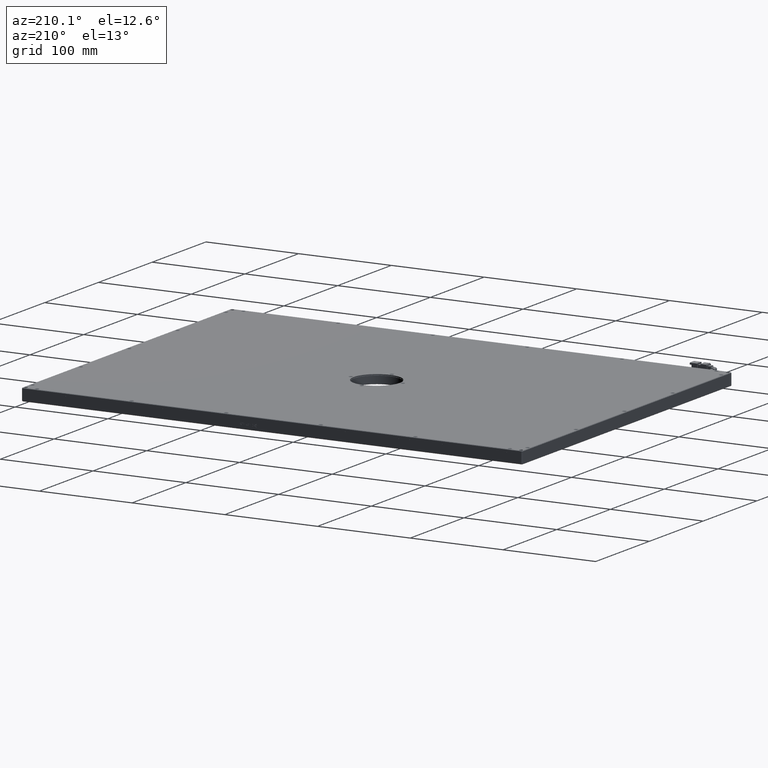
[diagram: clean part render]
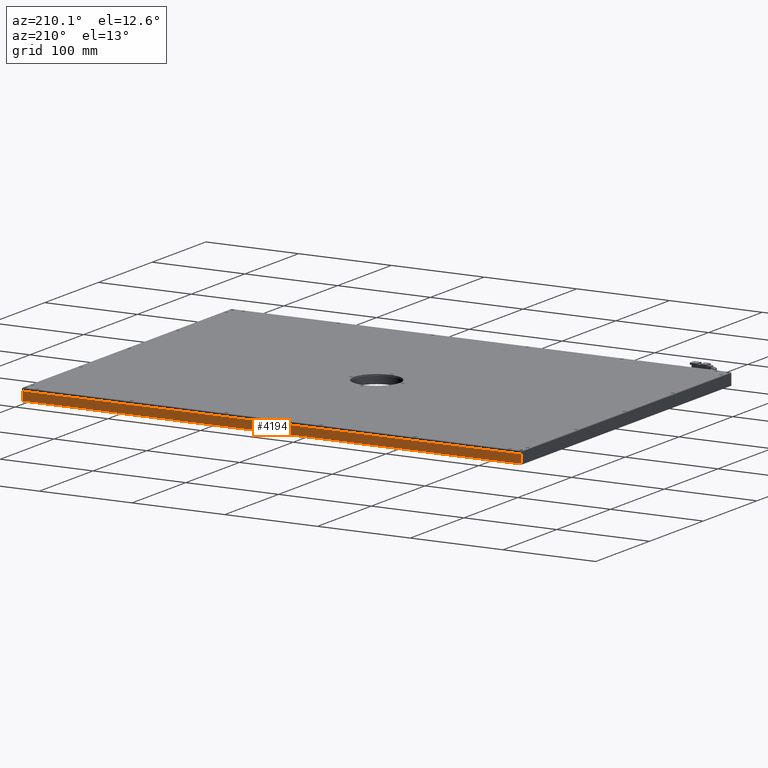
[diagram: same view with one face highlighted and labeled with its STEP entity id]
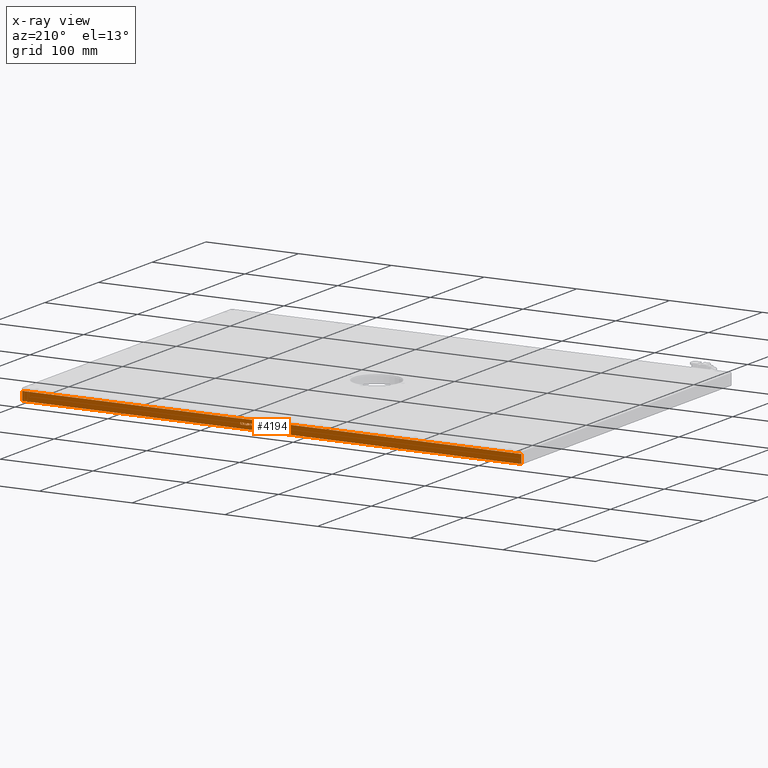
[diagram: x-ray of the same camera — body ghosted, the highlighted face saturated]
A machine part, auxiliary view. The second image highlights one B-rep face of the part: STEP entity #4194.
The next image is the same camera in x-ray: the body ghosted, the highlighted face saturated — about 0% of this face is hidden behind the body in this view.
In plain terms, the highlighted planar face has unit normal (0, -1, 0).
Its self-contained STEP definition (entity closure, byte-faithful):
#38 = CARTESIAN_POINT ( 'NONE',  ( 36.29821938056754500, 215.7122774133083900, 6.061400606963591300 ) ) ;
#49 = EDGE_CURVE ( 'NONE', #9268, #93, #20814, .T. ) ;
#50 = B_SPLINE_CURVE_WITH_KNOTS ( 'NONE', 3,
 ( #24296, #30896, #31029, #11280 ),
 .UNSPECIFIED., .F., .F.,
 ( 4, 4 ),
 ( 8.000000000000000000, 9.000000000000000000 ),
 .UNSPECIFIED. ) ;
#54 = CARTESIAN_POINT ( 'NONE',  ( 41.23315718478603700, 215.7122774133083900, 4.293958746498466500 ) ) ;
#93 = VERTEX_POINT ( 'NONE', #15497 ) ;
#163 = CARTESIAN_POINT ( 'NONE',  ( 43.14235134379090700, 215.7122774133083900, 4.573028513940333700 ) ) ;
#173 = CARTESIAN_POINT ( 'NONE',  ( 41.91006362069737900, 215.7122774133083900, 4.945121537196151900 ) ) ;
#195 = CARTESIAN_POINT ( 'NONE',  ( 45.54619125725761800, 215.7122774133083900, 4.266051769754287000 ) ) ;
#333 = VECTOR ( 'NONE', #1024, 1000.000000000000000 ) ;
#429 = VECTOR ( 'NONE', #16473, 1000.000000000000000 ) ;
#507 = B_SPLINE_CURVE_WITH_KNOTS ( 'NONE', 3,
 ( #22984, #29439, #39224, #29302 ),
 .UNSPECIFIED., .F., .F.,
 ( 4, 4 ),
 ( 10.00000000000000000, 11.00000000000000000 ),
 .UNSPECIFIED. ) ;
#548 = CARTESIAN_POINT ( 'NONE',  ( 35.72261094357459400, 215.7122774133083900, 6.055289195389757900 ) ) ;
#556 = ORIENTED_EDGE ( 'NONE', *, *, #24789, .F. ) ;
#579 = CARTESIAN_POINT ( 'NONE',  ( 34.10849520533759700, 215.7122774133083900, 5.298609909289159400 ) ) ;
#664 = CARTESIAN_POINT ( 'NONE',  ( 33.21320319424808800, 215.7122774133083900, 4.307389354276608600 ) ) ;
#675 = DIRECTION ( 'NONE',  ( -1.000000000000000000, -0.0000000000000000000, -0.0000000000000000000 ) ) ;
#716 = EDGE_CURVE ( 'NONE', #21152, #15192, #34666, .T. ) ;
#838 = EDGE_CURVE ( 'NONE', #25204, #2620, #7615, .T. ) ;
#839 = CARTESIAN_POINT ( 'NONE',  ( 36.00032862880991800, 215.7122774133083900, 6.349772699986841600 ) ) ;
#859 = VERTEX_POINT ( 'NONE', #14559 ) ;
#889 = VERTEX_POINT ( 'NONE', #34328 ) ;
#924 = CARTESIAN_POINT ( 'NONE',  ( 34.52504469154654700, 215.7122774133083900, 5.419540141847318400 ) ) ;
#1024 = DIRECTION ( 'NONE',  ( -1.000000000000000000, -0.0000000000000000000, -0.0000000000000000000 ) ) ;
#1085 = DIRECTION ( 'NONE',  ( 0.0000000000000000000, -0.0000000000000000000, -1.000000000000000000 ) ) ;
#1121 = PLANE ( 'NONE',  #21580 ) ;
#1142 = CARTESIAN_POINT ( 'NONE',  ( 40.42612635731174500, 215.7122774133083900, 6.293958746498468300 ) ) ;
#1227 = CARTESIAN_POINT ( 'NONE',  ( 45.65900899657626900, 215.7122774133083900, 6.061400606963591300 ) ) ;
#1293 = VERTEX_POINT ( 'NONE', #32969 ) ;
#1305 = CARTESIAN_POINT ( 'NONE',  ( -255.0590440487347600, 215.7122774133083900, 10.00000000001909900 ) ) ;
#1349 = CARTESIAN_POINT ( 'NONE',  ( 34.10849520533759700, 215.7122774133083900, 5.298609909289159400 ) ) ;
#1365 = VECTOR ( 'NONE', #39972, 1000.000000000000000 ) ;
#1370 = EDGE_CURVE ( 'NONE', #25009, #16452, #14198, .T. ) ;
#1380 = LINE ( 'NONE', #36779, #20305 ) ;
#1423 = CARTESIAN_POINT ( 'NONE',  ( 34.02455794195213900, 215.7122774133083900, 4.297149660506044600 ) ) ;
#1668 = ORIENTED_EDGE ( 'NONE', *, *, #22558, .F. ) ;
#1698 = CARTESIAN_POINT ( 'NONE',  ( 44.00146437786340000, 215.7122774133083900, 6.293958746498468300 ) ) ;
#1833 = VERTEX_POINT ( 'NONE', #34882 ) ;
#1847 = EDGE_CURVE ( 'NONE', #22891, #8439, #17251, .T. ) ;
#1879 = ORIENTED_EDGE ( 'NONE', *, *, #30372, .F. ) ;
#1908 = ORIENTED_EDGE ( 'NONE', *, *, #12846, .F. ) ;
#1919 = B_SPLINE_CURVE_WITH_KNOTS ( 'NONE', 3,
 ( #18126, #38185, #15269, #15416 ),
 .UNSPECIFIED., .F., .F.,
 ( 4, 4 ),
 ( 2.000000000000000000, 3.000000000000000000 ),
 .UNSPECIFIED. ) ;
#1926 = CARTESIAN_POINT ( 'NONE',  ( 43.75846816369355000, 215.7122774133083900, 4.573028513940333700 ) ) ;
#2187 = B_SPLINE_CURVE_WITH_KNOTS ( 'NONE', 3,
 ( #15963, #21957, #15405, #2479 ),
 .UNSPECIFIED., .F., .F.,
 ( 4, 4 ),
 ( 0.0000000000000000000, 1.000000000000000000 ),
 .UNSPECIFIED. ) ;
#2204 = CARTESIAN_POINT ( 'NONE',  ( 46.62228644384502700, 215.7122774133083900, 4.814888979056609000 ) ) ;
#2214 = CARTESIAN_POINT ( 'NONE',  ( 39.81568828267678800, 215.7122774133083900, 4.303261072079864700 ) ) ;
#2234 = CARTESIAN_POINT ( 'NONE',  ( 44.40936053794991500, 215.7122774133083900, 4.293958746498466500 ) ) ;
#2256 = CARTESIAN_POINT ( 'NONE',  ( 45.54619125725761800, 215.7122774133083900, 4.266051769754287000 ) ) ;
#2387 = EDGE_LOOP ( 'NONE', ( #30187, #31775, #13552, #22756 ) ) ;
#2476 = CARTESIAN_POINT ( 'NONE',  ( 46.63964717937773900, 215.7122774133083900, 4.455289195389767100 ) ) ;
#2479 = CARTESIAN_POINT ( 'NONE',  ( 40.16576940760913300, 215.7122774133083900, 5.307912234870571800 ) ) ;
#2536 = VERTEX_POINT ( 'NONE', #7561 ) ;
#2539 = EDGE_CURVE ( 'NONE', #10370, #35331, #6790, .T. ) ;
#2562 = ORIENTED_EDGE ( 'NONE', *, *, #41598, .F. ) ;
#2611 = CARTESIAN_POINT ( 'NONE',  ( 47.32520694141123800, 215.7122774133083900, 4.266051769754287000 ) ) ;
#2620 = VERTEX_POINT ( 'NONE', #8148 ) ;
#2668 = CARTESIAN_POINT ( 'NONE',  ( 46.32720802307704800, 215.7122774133083900, 5.614888979056604300 ) ) ;
#2907 = EDGE_CURVE ( 'NONE', #22436, #38674, #24130, .T. ) ;
#2912 = EDGE_CURVE ( 'NONE', #24730, #31991, #35892, .T. ) ;
#2928 = CARTESIAN_POINT ( 'NONE',  ( 33.21320319424808800, 215.7122774133083900, 3.948383286598113000 ) ) ;
#2946 = CARTESIAN_POINT ( 'NONE',  ( 39.23721343140584800, 215.7122774133083900, 4.266051769754287000 ) ) ;
#2980 = CARTESIAN_POINT ( 'NONE',  ( 35.46225399387198300, 215.7122774133083900, 4.852098281382200900 ) ) ;
#3046 = LINE ( 'NONE', #6709, #36888 ) ;
#3134 = CARTESIAN_POINT ( 'NONE',  ( 44.40936053794985800, 215.7122774133083900, 6.293958746498468300 ) ) ;
#3295 = CARTESIAN_POINT ( 'NONE',  ( 36.87680239841512300, 215.7122774133083900, 6.073893846552553400 ) ) ;
#3302 = B_SPLINE_CURVE_WITH_KNOTS ( 'NONE', 3,
 ( #15593, #22154, #22424, #16286 ),
 .UNSPECIFIED., .F., .F.,
 ( 4, 4 ),
 ( 10.00000000000000000, 11.00000000000000000 ),
 .UNSPECIFIED. ) ;
#3418 = CARTESIAN_POINT ( 'NONE',  ( 41.92158336109758200, 215.7122774133083900, 5.391633165103138800 ) ) ;
#3430 = VECTOR ( 'NONE', #37593, 1000.000000000000000 ) ;
#3533 = EDGE_CURVE ( 'NONE', #16288, #18260, #30407, .T. ) ;
#3604 = EDGE_LOOP ( 'NONE', ( #12935, #14677, #19573, #1879, #38802, #30226, #12898, #40889, #13866, #9440, #2562, #35167, #7474, #34318 ) ) ;
#3663 = ORIENTED_EDGE ( 'NONE', *, *, #30266, .F. ) ;
#3714 = CARTESIAN_POINT ( 'NONE',  ( 46.57885756336915500, 215.7122774133083900, 5.605586653475220300 ) ) ;
#3955 = CARTESIAN_POINT ( 'NONE',  ( 36.15652116531609300, 215.7122774133083900, 4.293958746498466500 ) ) ;
#3970 = CARTESIAN_POINT ( 'NONE',  ( 46.57885756336915500, 215.7122774133083900, 5.959075025568242100 ) ) ;
#3992 = CARTESIAN_POINT ( 'NONE',  ( 33.21320319424808800, 215.7122774133083900, 6.561446242468161200 ) ) ;
#4101 = CARTESIAN_POINT ( 'NONE',  ( 36.57307065152487300, 215.7122774133083900, 6.331168048824060300 ) ) ;
#4114 = CARTESIAN_POINT ( 'NONE',  ( 42.72580185758217700, 215.7122774133083900, 4.573028513940333700 ) ) ;
#4193 = CARTESIAN_POINT ( 'NONE',  ( 40.83396843411002700, 215.7122774133083900, 5.596284327893836300 ) ) ;
#4194 = ADVANCED_FACE ( 'NONE', ( #6504, #40375, #22885, #29074, #7022, #32157, #17269, #23419, #14718, #30075 ), #1121, .F. ) ;
#4205 = EDGE_CURVE ( 'NONE', #31991, #16414, #25427, .T. ) ;
#4292 = EDGE_CURVE ( 'NONE', #17812, #6234, #35152, .T. ) ;
#4625 = EDGE_CURVE ( 'NONE', #20847, #1833, #40249, .T. ) ;
#4626 = CARTESIAN_POINT ( 'NONE',  ( 39.23721343140584800, 215.7122774133083900, 6.331168048824060300 ) ) ;
#4670 = ORIENTED_EDGE ( 'NONE', *, *, #37389, .F. ) ;
#4712 = LINE ( 'NONE', #39191, #36534 ) ;
#4722 = EDGE_CURVE ( 'NONE', #41141, #40453, #26328, .T. ) ;
#4849 = ORIENTED_EDGE ( 'NONE', *, *, #7703, .F. ) ;
#4864 = CARTESIAN_POINT ( 'NONE',  ( 45.57220531891253800, 215.7122774133083900, 4.554423862777538200 ) ) ;
#4984 = EDGE_CURVE ( 'NONE', #29099, #24430, #17525, .T. ) ;
#4989 = EDGE_CURVE ( 'NONE', #41141, #35514, #29878, .T. ) ;
#5105 = EDGE_CURVE ( 'NONE', #21268, #41488, #23815, .T. ) ;
#5309 = EDGE_CURVE ( 'NONE', #34847, #17812, #15067, .T. ) ;
#5350 = EDGE_CURVE ( 'NONE', #28205, #22436, #9824, .T. ) ;
#5367 = CARTESIAN_POINT ( 'NONE',  ( 45.56355199279038700, 215.7122774133083900, 6.331168048824060300 ) ) ;
#5423 = CARTESIAN_POINT ( 'NONE',  ( 45.65900899657626900, 215.7122774133083900, 6.061400606963591300 ) ) ;
#5497 = CARTESIAN_POINT ( 'NONE',  ( 30.23046300269960400, 215.7122774133083900, 6.561446242468161200 ) ) ;
#5514 = CARTESIAN_POINT ( 'NONE',  ( 282.9409559512653200, 215.7122774133083900, 10.00000000001909900 ) ) ;
#5584 = EDGE_CURVE ( 'NONE', #859, #29355, #10358, .T. ) ;
#5668 = CARTESIAN_POINT ( 'NONE',  ( 33.71498519992932300, 215.7122774133083900, 5.959075025568242100 ) ) ;
#5683 = EDGE_CURVE ( 'NONE', #8439, #18626, #507, .T. ) ;
#5771 = B_SPLINE_CURVE_WITH_KNOTS ( 'NONE', 3,
 ( #2668, #8997, #8842, #18998 ),
 .UNSPECIFIED., .F., .F.,
 ( 4, 4 ),
 ( 4.000000000000000000, 5.000000000000000000 ),
 .UNSPECIFIED. ) ;
#5859 = ORIENTED_EDGE ( 'NONE', *, *, #838, .F. ) ;
#6234 = VERTEX_POINT ( 'NONE', #39192 ) ;
#6263 = ORIENTED_EDGE ( 'NONE', *, *, #17010, .F. ) ;
#6338 = B_SPLINE_CURVE_WITH_KNOTS ( 'NONE', 3,
 ( #36264, #9616, #3295, #16628 ),
 .UNSPECIFIED., .F., .F.,
 ( 4, 4 ),
 ( 4.000000000000000000, 5.000000000000000000 ),
 .UNSPECIFIED. ) ;
#6355 = CARTESIAN_POINT ( 'NONE',  ( 34.96463365855562000, 215.7122774133083900, 4.647447118591502500 ) ) ;
#6372 = DIRECTION ( 'NONE',  ( -0.0000000000000000000, -0.0000000000000000000, -1.000000000000000000 ) ) ;
#6422 = CARTESIAN_POINT ( 'NONE',  ( 47.37723506472119100, 215.7122774133083900, 6.331168048824060300 ) ) ;
#6504 = FACE_BOUND ( 'NONE', #33427, .T. ) ;
#6522 = B_SPLINE_CURVE_WITH_KNOTS ( 'NONE', 3,
 ( #7377, #33465, #20569, #13534 ),
 .UNSPECIFIED., .F., .F.,
 ( 4, 4 ),
 ( 3.000000000000000000, 4.000000000000000000 ),
 .UNSPECIFIED. ) ;
#6677 = EDGE_CURVE ( 'NONE', #20669, #36533, #14252, .T. ) ;
#6709 = CARTESIAN_POINT ( 'NONE',  ( 35.73997167910736300, 215.7122774133083900, 4.293958746498466500 ) ) ;
#6752 = CARTESIAN_POINT ( 'NONE',  ( 34.82877643843662700, 215.7122774133083900, 4.545121537196154200 ) ) ;
#6760 = CARTESIAN_POINT ( 'NONE',  ( 48.14662392356372300, 215.7122774133083900, 6.132628297607182000 ) ) ;
#6768 = CARTESIAN_POINT ( 'NONE',  ( 35.46225399387198300, 215.7122774133083900, 4.852098281382200900 ) ) ;
#6788 = VERTEX_POINT ( 'NONE', #163 ) ;
#6790 = B_SPLINE_CURVE_WITH_KNOTS ( 'NONE', 3,
 ( #7301, #20624, #23628, #30357 ),
 .UNSPECIFIED., .F., .F.,
 ( 4, 4 ),
 ( 11.00000000000000000, 12.00000000000000000 ),
 .UNSPECIFIED. ) ;
#6795 = EDGE_CURVE ( 'NONE', #6234, #889, #9657, .T. ) ;
#6899 = VECTOR ( 'NONE', #33445, 1000.000000000000000 ) ;
#6925 = ORIENTED_EDGE ( 'NONE', *, *, #31142, .F. ) ;
#6985 = CARTESIAN_POINT ( 'NONE',  ( 43.75846816369355000, 215.7122774133083900, 4.293958746498466500 ) ) ;
#7022 = FACE_BOUND ( 'NONE', #23620, .T. ) ;
#7053 = CARTESIAN_POINT ( 'NONE',  ( 44.65235675211970100, 215.7122774133083900, 5.298609909289159400 ) ) ;
#7159 = CARTESIAN_POINT ( 'NONE',  ( 38.33753793113542200, 215.7122774133083900, 5.952963613994408700 ) ) ;
#7172 = ORIENTED_EDGE ( 'NONE', *, *, #6795, .F. ) ;
#7182 = CARTESIAN_POINT ( 'NONE',  ( 48.14094517829603600, 215.7122774133083900, 5.735819211614749100 ) ) ;
#7295 = VERTEX_POINT ( 'NONE', #18993 ) ;
#7301 = CARTESIAN_POINT ( 'NONE',  ( 48.14094517829603600, 215.7122774133083900, 5.735819211614749100 ) ) ;
#7353 = B_SPLINE_CURVE_WITH_KNOTS ( 'NONE', 3,
 ( #30837, #17686, #24240, #24385 ),
 .UNSPECIFIED., .F., .F.,
 ( 4, 4 ),
 ( 13.00000000000000000, 14.00000000000000000 ),
 .UNSPECIFIED. ) ;
#7377 = CARTESIAN_POINT ( 'NONE',  ( 47.35992841247671200, 215.7122774133083900, 5.456749444172881900 ) ) ;
#7419 = ORIENTED_EDGE ( 'NONE', *, *, #13962, .F. ) ;
#7474 = ORIENTED_EDGE ( 'NONE', *, *, #36292, .F. ) ;
#7531 = EDGE_CURVE ( 'NONE', #24430, #14904, #16682, .T. ) ;
#7561 = CARTESIAN_POINT ( 'NONE',  ( 48.08886297169790000, 215.7122774133083900, 4.889307583707764400 ) ) ;
#7611 = LINE ( 'NONE', #5514, #36347 ) ;
#7615 = B_SPLINE_CURVE_WITH_KNOTS ( 'NONE', 3,
 ( #40122, #11683, #28307, #31458 ),
 .UNSPECIFIED., .F., .F.,
 ( 4, 4 ),
 ( 2.000000000000000000, 3.000000000000000000 ),
 .UNSPECIFIED. ) ;
#7703 = EDGE_CURVE ( 'NONE', #6788, #37425, #28939, .T. ) ;
#8016 = CARTESIAN_POINT ( 'NONE',  ( 39.23721343140584800, 215.7122774133083900, 6.331168048824060300 ) ) ;
#8039 = ORIENTED_EDGE ( 'NONE', *, *, #11133, .F. ) ;
#8125 = CARTESIAN_POINT ( 'NONE',  ( 46.37063690355286400, 215.7122774133083900, 4.926516886033355500 ) ) ;
#8148 = CARTESIAN_POINT ( 'NONE',  ( 38.30865745520250700, 215.7122774133083900, 5.307912234870571800 ) ) ;
#8213 = CARTESIAN_POINT ( 'NONE',  ( 44.68123722805273000, 215.7122774133083900, 5.956019319781325400 ) ) ;
#8281 = VERTEX_POINT ( 'NONE', #9050 ) ;
#8315 = CARTESIAN_POINT ( 'NONE',  ( 40.42612635731174500, 215.7122774133083900, 6.293958746498468300 ) ) ;
#8439 = VERTEX_POINT ( 'NONE', #26487 ) ;
#8485 = DIRECTION ( 'NONE',  ( -1.000000000000000000, -0.0000000000000000000, -0.0000000000000000000 ) ) ;
#8491 = B_SPLINE_CURVE_WITH_KNOTS ( 'NONE', 3,
 ( #32501, #29757, #42323, #26304 ),
 .UNSPECIFIED., .F., .F.,
 ( 4, 4 ),
 ( 9.000000000000000000, 10.00000000000000000 ),
 .UNSPECIFIED. ) ;
#8585 = EDGE_CURVE ( 'NONE', #16464, #6788, #26540, .T. ) ;
#8650 = CARTESIAN_POINT ( 'NONE',  ( 44.98496897494297300, 215.7122774133083900, 6.300070158072288400 ) ) ;
#8653 = CARTESIAN_POINT ( 'NONE',  ( 40.16576940760913300, 215.7122774133083900, 5.307912234870571800 ) ) ;
#8679 = CARTESIAN_POINT ( 'NONE',  ( 45.56355199279038700, 215.7122774133083900, 6.331168048824060300 ) ) ;
#8716 = EDGE_CURVE ( 'NONE', #18260, #17373, #32683, .T. ) ;
#8842 = CARTESIAN_POINT ( 'NONE',  ( 45.90768395601369200, 215.7122774133083900, 6.073893846552553400 ) ) ;
#8888 = CARTESIAN_POINT ( 'NONE',  ( 40.42612635731174500, 215.7122774133083900, 4.293958746498466500 ) ) ;
#8973 = ORIENTED_EDGE ( 'NONE', *, *, #36500, .F. ) ;
#8983 = VERTEX_POINT ( 'NONE', #39390 ) ;
#8988 = CARTESIAN_POINT ( 'NONE',  ( 40.83396843411002700, 215.7122774133083900, 6.293958746498468300 ) ) ;
#8997 = CARTESIAN_POINT ( 'NONE',  ( 46.13045302037288300, 215.7122774133083900, 5.925056637250229100 ) ) ;
#9050 = CARTESIAN_POINT ( 'NONE',  ( 36.58172397764703000, 215.7122774133083900, 6.061400606963591300 ) ) ;
#9081 = EDGE_CURVE ( 'NONE', #13467, #11340, #1380, .T. ) ;
#9101 = CARTESIAN_POINT ( 'NONE',  ( -255.0590440487347600, 215.7122774133083900, 0.5000000000189333000 ) ) ;
#9113 = EDGE_CURVE ( 'NONE', #7295, #10845, #28534, .T. ) ;
#9133 = DIRECTION ( 'NONE',  ( -1.000000000000000000, -0.0000000000000000000, -0.0000000000000000000 ) ) ;
#9187 = CARTESIAN_POINT ( 'NONE',  ( 40.16576940760913300, 215.7122774133083900, 5.307912234870571800 ) ) ;
#9232 = ORIENTED_EDGE ( 'NONE', *, *, #9924, .F. ) ;
#9268 = VERTEX_POINT ( 'NONE', #26981 ) ;
#9433 = CARTESIAN_POINT ( 'NONE',  ( 32.66942100099123500, 215.7122774133083900, 3.763585402517789300 ) ) ;
#9440 = ORIENTED_EDGE ( 'NONE', *, *, #39551, .F. ) ;
#9443 = VECTOR ( 'NONE', #8485, 1000.000000000000000 ) ;
#9616 = CARTESIAN_POINT ( 'NONE',  ( 37.01850061366651800, 215.7122774133083900, 5.903261072079868800 ) ) ;
#9657 = LINE ( 'NONE', #3134, #429 ) ;
#9769 = EDGE_CURVE ( 'NONE', #1293, #21268, #13087, .T. ) ;
#9823 = CARTESIAN_POINT ( 'NONE',  ( 33.02829659101475100, 215.7122774133083900, 3.763585402517789300 ) ) ;
#9824 = B_SPLINE_CURVE_WITH_KNOTS ( 'NONE', 3,
 ( #4864, #27628, #34237, #24479 ),
 .UNSPECIFIED., .F., .F.,
 ( 4, 4 ),
 ( 1.000000000000000000, 2.000000000000000000 ),
 .UNSPECIFIED. ) ;
#9896 = CARTESIAN_POINT ( 'NONE',  ( -256.0590440487347900, 215.7122774133083900, 0.5000000000189331900 ) ) ;
#9911 = B_SPLINE_CURVE_WITH_KNOTS ( 'NONE', 3,
 ( #39301, #38, #13163, #36130 ),
 .UNSPECIFIED., .F., .F.,
 ( 4, 4 ),
 ( 3.000000000000000000, 4.000000000000000000 ),
 .UNSPECIFIED. ) ;
#9924 = EDGE_CURVE ( 'NONE', #36533, #859, #41834, .T. ) ;
#9993 = DIRECTION ( 'NONE',  ( -0.0000000000000000000, -0.0000000000000000000, -1.000000000000000000 ) ) ;
#10125 = EDGE_LOOP ( 'NONE', ( #19577, #31732, #30866, #30599, #22331, #18929, #39983, #33291, #15708, #34011, #8973, #18894, #38639, #31995 ) ) ;
#10227 = ORIENTED_EDGE ( 'NONE', *, *, #2912, .F. ) ;
#10239 = CARTESIAN_POINT ( 'NONE',  ( 46.57885756336915500, 215.7122774133083900, 5.959075025568242100 ) ) ;
#10358 = LINE ( 'NONE', #12255, #18055 ) ;
#10359 = CARTESIAN_POINT ( 'NONE',  ( 42.10968503767953300, 215.7122774133083900, 4.573028513940333700 ) ) ;
#10370 = VERTEX_POINT ( 'NONE', #27913 ) ;
#10493 = VERTEX_POINT ( 'NONE', #5423 ) ;
#10498 = CARTESIAN_POINT ( 'NONE',  ( 47.32520694141123800, 215.7122774133083900, 4.266051769754287000 ) ) ;
#10595 = ORIENTED_EDGE ( 'NONE', *, *, #17358, .F. ) ;
#10649 = B_SPLINE_CURVE_WITH_KNOTS ( 'NONE', 3,
 ( #37358, #17764, #14601, #37509 ),
 .UNSPECIFIED., .F., .F.,
 ( 4, 4 ),
 ( 4.000000000000000000, 5.000000000000000000 ),
 .UNSPECIFIED. ) ;
#10845 = VERTEX_POINT ( 'NONE', #37845 ) ;
#10878 = EDGE_CURVE ( 'NONE', #11340, #32922, #33341, .T. ) ;
#11010 = DIRECTION ( 'NONE',  ( -0.0000000000000000000, -0.0000000000000000000, -1.000000000000000000 ) ) ;
#11133 = EDGE_CURVE ( 'NONE', #20428, #23338, #39484, .T. ) ;
#11216 = B_SPLINE_CURVE_WITH_KNOTS ( 'NONE', 3,
 ( #16807, #13629, #20092, #10498 ),
 .UNSPECIFIED., .F., .F.,
 ( 4, 4 ),
 ( 6.000000000000000000, 7.000000000000000000 ),
 .UNSPECIFIED. ) ;
#11265 = CARTESIAN_POINT ( 'NONE',  ( 47.33386026753355900, 215.7122774133083900, 4.554423862777538200 ) ) ;
#11280 = CARTESIAN_POINT ( 'NONE',  ( 37.42353035947504500, 215.7122774133083900, 5.428842467428702400 ) ) ;
#11340 = VERTEX_POINT ( 'NONE', #17464 ) ;
#11683 = CARTESIAN_POINT ( 'NONE',  ( 38.64711067315812400, 215.7122774133083900, 4.290903040711564000 ) ) ;
#11756 = VERTEX_POINT ( 'NONE', #6422 ) ;
#11824 = EDGE_CURVE ( 'NONE', #14904, #13500, #6522, .T. ) ;
#11924 = VECTOR ( 'NONE', #17593, 1000.000000000000000 ) ;
#11972 = CARTESIAN_POINT ( 'NONE',  ( 46.32720802307704800, 215.7122774133083900, 5.996284327893819800 ) ) ;
#12097 = CARTESIAN_POINT ( 'NONE',  ( 34.03326535136258700, 215.7122774133083900, 6.306316777866783200 ) ) ;
#12111 = LINE ( 'NONE', #17244, #30521 ) ;
#12127 = CARTESIAN_POINT ( 'NONE',  ( 30.23046300269960400, 215.7122774133083900, 6.202516281466458300 ) ) ;
#12226 = VERTEX_POINT ( 'NONE', #12228 ) ;
#12228 = CARTESIAN_POINT ( 'NONE',  ( 30.77429412167614900, 215.7122774133083900, 6.746325669416636500 ) ) ;
#12255 = CARTESIAN_POINT ( 'NONE',  ( 37.00698087326625800, 215.7122774133083900, 5.549772699986832900 ) ) ;
#12369 = LINE ( 'NONE', #38166, #23134 ) ;
#12400 = LINE ( 'NONE', #31399, #31884 ) ;
#12470 = CARTESIAN_POINT ( 'NONE',  ( 33.21320319424808800, 215.7122774133083900, 6.202516281466458300 ) ) ;
#12543 = VERTEX_POINT ( 'NONE', #24057 ) ;
#12744 = DIRECTION ( 'NONE',  ( 1.000000000000000000, -0.0000000000000000000, -0.0000000000000000000 ) ) ;
#12846 = EDGE_CURVE ( 'NONE', #8983, #14277, #34673, .T. ) ;
#12898 = ORIENTED_EDGE ( 'NONE', *, *, #7531, .F. ) ;
#12935 = ORIENTED_EDGE ( 'NONE', *, *, #35295, .F. ) ;
#12998 = VECTOR ( 'NONE', #29782, 1000.000000000000000 ) ;
#13022 = EDGE_LOOP ( 'NONE', ( #27126, #42427, #8039, #28291, #37527, #13222, #41538, #35085, #9232, #22458 ) ) ;
#13026 = DIRECTION ( 'NONE',  ( -0.0000000000000000000, -0.0000000000000000000, 1.000000000000000000 ) ) ;
#13058 = DIRECTION ( 'NONE',  ( 1.000000000000000000, -0.0000000000000000000, -0.0000000000000000000 ) ) ;
#13087 = B_SPLINE_CURVE_WITH_KNOTS ( 'NONE', 3,
 ( #1349, #17811, #33710, #20813 ),
 .UNSPECIFIED., .F., .F.,
 ( 4, 4 ),
 ( 2.000000000000000000, 3.000000000000000000 ),
 .UNSPECIFIED. ) ;
#13120 = EDGE_CURVE ( 'NONE', #32922, #39846, #10649, .T. ) ;
#13140 = DIRECTION ( 'NONE',  ( -1.000000000000000000, -0.0000000000000000000, -0.0000000000000000000 ) ) ;
#13163 = CARTESIAN_POINT ( 'NONE',  ( 36.15652116531609300, 215.7122774133083900, 5.890903040711553900 ) ) ;
#13222 = ORIENTED_EDGE ( 'NONE', *, *, #40026, .F. ) ;
#13283 = CARTESIAN_POINT ( 'NONE',  ( 35.33494193329872200, 215.7122774133083900, 4.461400606963587200 ) ) ;
#13366 = LINE ( 'NONE', #8315, #29297 ) ;
#13467 = VERTEX_POINT ( 'NONE', #924 ) ;
#13500 = VERTEX_POINT ( 'NONE', #37001 ) ;
#13534 = CARTESIAN_POINT ( 'NONE',  ( 47.71568828267680800, 215.7122774133083900, 5.763726188358928600 ) ) ;
#13552 = ORIENTED_EDGE ( 'NONE', *, *, #4989, .T. ) ;
#13578 = VERTEX_POINT ( 'NONE', #18413 ) ;
#13629 = CARTESIAN_POINT ( 'NONE',  ( 48.01942002956705100, 215.7122774133083900, 4.486251877920850000 ) ) ;
#13634 = DIRECTION ( 'NONE',  ( -0.0000000000000000000, -0.0000000000000000000, -1.000000000000000000 ) ) ;
#13695 = EDGE_LOOP ( 'NONE', ( #32232, #5859, #21297, #23050 ) ) ;
#13866 = ORIENTED_EDGE ( 'NONE', *, *, #27215, .F. ) ;
#13962 = EDGE_CURVE ( 'NONE', #34512, #8983, #16958, .T. ) ;
#14098 = EDGE_CURVE ( 'NONE', #2620, #15310, #22980, .T. ) ;
#14198 = B_SPLINE_CURVE_WITH_KNOTS ( 'NONE', 3,
 ( #195, #26366, #22790, #16641 ),
 .UNSPECIFIED., .F., .F.,
 ( 4, 4 ),
 ( 8.000000000000000000, 9.000000000000000000 ),
 .UNSPECIFIED. ) ;
#14252 = LINE ( 'NONE', #35516, #32211 ) ;
#14277 = VERTEX_POINT ( 'NONE', #8888 ) ;
#14350 = EDGE_CURVE ( 'NONE', #10845, #20428, #3046, .T. ) ;
#14379 = CARTESIAN_POINT ( 'NONE',  ( 44.65235675211970100, 215.7122774133083900, 5.298609909289159400 ) ) ;
#14428 = CARTESIAN_POINT ( 'NONE',  ( 34.62050169533231500, 215.7122774133083900, 4.266051769754287000 ) ) ;
#14455 = ORIENTED_EDGE ( 'NONE', *, *, #40492, .F. ) ;
#14559 = CARTESIAN_POINT ( 'NONE',  ( 37.00698087326625800, 215.7122774133083900, 4.293958746498466500 ) ) ;
#14601 = CARTESIAN_POINT ( 'NONE',  ( 34.87501764990225400, 215.7122774133083900, 6.067647226758071900 ) ) ;
#14677 = ORIENTED_EDGE ( 'NONE', *, *, #15395, .F. ) ;
#14686 = VECTOR ( 'NONE', #9993, 1000.000000000000000 ) ;
#14718 = FACE_BOUND ( 'NONE', #10125, .T. ) ;
#14904 = VERTEX_POINT ( 'NONE', #24869 ) ;
#14982 = VERTEX_POINT ( 'NONE', #8988 ) ;
#15020 = CARTESIAN_POINT ( 'NONE',  ( 45.96274074346639800, 215.7122774133083900, 4.926516886033355500 ) ) ;
#15067 = LINE ( 'NONE', #23909, #41781 ) ;
#15093 = B_SPLINE_CURVE_WITH_KNOTS ( 'NONE', 3,
 ( #8653, #41689, #2214, #31571 ),
 .UNSPECIFIED., .F., .F.,
 ( 4, 4 ),
 ( 3.000000000000000000, 4.000000000000000000 ),
 .UNSPECIFIED. ) ;
#15142 = CARTESIAN_POINT ( 'NONE',  ( 46.37063690355286400, 215.7122774133083900, 4.926516886033355500 ) ) ;
#15150 = DIRECTION ( 'NONE',  ( -0.0000000000000000000, -0.0000000000000000000, 1.000000000000000000 ) ) ;
#15164 = DIRECTION ( 'NONE',  ( -0.0000000000000000000, -0.0000000000000000000, 1.000000000000000000 ) ) ;
#15172 = CARTESIAN_POINT ( 'NONE',  ( 34.62050169533231500, 215.7122774133083900, 4.545121537196154200 ) ) ;
#15192 = VERTEX_POINT ( 'NONE', #10239 ) ;
#15204 = CARTESIAN_POINT ( 'NONE',  ( 34.52504469154654700, 215.7122774133083900, 5.140470374405437900 ) ) ;
#15269 = CARTESIAN_POINT ( 'NONE',  ( 47.57685648170334500, 215.7122774133083900, 6.070702932544988600 ) ) ;
#15310 = VERTEX_POINT ( 'NONE', #4626 ) ;
#15373 = DIRECTION ( 'NONE',  ( -0.0000000000000000000, -0.0000000000000000000, -1.000000000000000000 ) ) ;
#15389 = LINE ( 'NONE', #42539, #40533 ) ;
#15395 = EDGE_CURVE ( 'NONE', #15192, #11756, #7353, .T. ) ;
#15405 = CARTESIAN_POINT ( 'NONE',  ( 40.13672668181151000, 215.7122774133083900, 5.952963613994408700 ) ) ;
#15416 = CARTESIAN_POINT ( 'NONE',  ( 47.31649953200079000, 215.7122774133083900, 6.070702932544988600 ) ) ;
#15485 = VECTOR ( 'NONE', #21574, 1000.000000000000000 ) ;
#15497 = CARTESIAN_POINT ( 'NONE',  ( 34.62050169533231500, 215.7122774133083900, 4.266051769754287000 ) ) ;
#15593 = CARTESIAN_POINT ( 'NONE',  ( 47.37723506472119100, 215.7122774133083900, 5.103261072079873500 ) ) ;
#15669 = VERTEX_POINT ( 'NONE', #26637 ) ;
#15674 = B_SPLINE_CURVE_WITH_KNOTS ( 'NONE', 3,
 ( #40514, #5497, #41542, #27996 ),
 .UNSPECIFIED., .F., .F.,
 ( 4, 4 ),
 ( 7.000000000000000000, 8.000000000000000000 ),
 .UNSPECIFIED. ) ;
#15708 = ORIENTED_EDGE ( 'NONE', *, *, #9081, .F. ) ;
#15730 = VECTOR ( 'NONE', #33906, 1000.000000000000000 ) ;
#15822 = DIRECTION ( 'NONE',  ( 1.000000000000000000, -0.0000000000000000000, 0.0000000000000000000 ) ) ;
#15945 = B_SPLINE_CURVE_WITH_KNOTS ( 'NONE', 3,
 ( #29432, #2928, #9823, #42558 ),
 .UNSPECIFIED., .F., .F.,
 ( 4, 4 ),
 ( 3.000000000000000000, 4.000000000000000000 ),
 .UNSPECIFIED. ) ;
#15963 = CARTESIAN_POINT ( 'NONE',  ( 39.23721343140584800, 215.7122774133083900, 6.331168048824060300 ) ) ;
#16137 = VECTOR ( 'NONE', #18870, 1000.000000000000000 ) ;
#16286 = CARTESIAN_POINT ( 'NONE',  ( 47.04748925617602100, 215.7122774133083900, 4.814888979056609000 ) ) ;
#16288 = VERTEX_POINT ( 'NONE', #31701 ) ;
#16329 = VERTEX_POINT ( 'NONE', #10359 ) ;
#16394 = CARTESIAN_POINT ( 'NONE',  ( 35.73997167910736300, 215.7122774133083900, 4.293958746498466500 ) ) ;
#16414 = VERTEX_POINT ( 'NONE', #39765 ) ;
#16452 = VERTEX_POINT ( 'NONE', #7053 ) ;
#16464 = VERTEX_POINT ( 'NONE', #40052 ) ;
#16473 = DIRECTION ( 'NONE',  ( 1.000000000000000000, -0.0000000000000000000, -0.0000000000000000000 ) ) ;
#16593 = EDGE_CURVE ( 'NONE', #14277, #26635, #13366, .T. ) ;
#16608 = CARTESIAN_POINT ( 'NONE',  ( 32.66942100099123500, 215.7122774133083900, 6.746325669416636500 ) ) ;
#16628 = CARTESIAN_POINT ( 'NONE',  ( 36.58172397764703000, 215.7122774133083900, 6.061400606963591300 ) ) ;
#16641 = CARTESIAN_POINT ( 'NONE',  ( 44.65235675211970100, 215.7122774133083900, 5.298609909289159400 ) ) ;
#16682 = B_SPLINE_CURVE_WITH_KNOTS ( 'NONE', 3,
 ( #33440, #40083, #33870, #16972 ),
 .UNSPECIFIED., .F., .F.,
 ( 4, 4 ),
 ( 4.000000000000000000, 5.000000000000000000 ),
 .UNSPECIFIED. ) ;
#16807 = CARTESIAN_POINT ( 'NONE',  ( 48.08886297169790000, 215.7122774133083900, 4.889307583707764400 ) ) ;
#16844 = VERTEX_POINT ( 'NONE', #9187 ) ;
#16850 = EDGE_CURVE ( 'NONE', #38674, #25009, #36472, .T. ) ;
#16873 = CARTESIAN_POINT ( 'NONE',  ( 35.47096140328248700, 215.7122774133083900, 5.884656420917073300 ) ) ;
#16958 = B_SPLINE_CURVE_WITH_KNOTS ( 'NONE', 3,
 ( #42505, #22508, #19635, #54 ),
 .UNSPECIFIED., .F., .F.,
 ( 4, 4 ),
 ( 5.000000000000000000, 6.000000000000000000 ),
 .UNSPECIFIED. ) ;
#16972 = CARTESIAN_POINT ( 'NONE',  ( 47.35992841247671200, 215.7122774133083900, 5.456749444172881900 ) ) ;
#17010 = EDGE_CURVE ( 'NONE', #15669, #20847, #39783, .T. ) ;
#17180 = CARTESIAN_POINT ( 'NONE',  ( 34.30811662231975100, 215.7122774133083900, 6.030437924432480800 ) ) ;
#17228 = CARTESIAN_POINT ( 'NONE',  ( 46.32720802307704800, 215.7122774133083900, 5.996284327893819800 ) ) ;
#17244 = CARTESIAN_POINT ( 'NONE',  ( 42.72580185758217700, 215.7122774133083900, 4.573028513940333700 ) ) ;
#17251 = B_SPLINE_CURVE_WITH_KNOTS ( 'NONE', 3,
 ( #25412, #5668, #12097, #28158 ),
 .UNSPECIFIED., .F., .F.,
 ( 4, 4 ),
 ( 11.00000000000000000, 12.00000000000000000 ),
 .UNSPECIFIED. ) ;
#17269 = FACE_BOUND ( 'NONE', #13695, .T. ) ;
#17358 = EDGE_CURVE ( 'NONE', #41359, #20332, #39635, .T. ) ;
#17373 = VERTEX_POINT ( 'NONE', #12127 ) ;
#17384 = ORIENTED_EDGE ( 'NONE', *, *, #25334, .F. ) ;
#17464 = CARTESIAN_POINT ( 'NONE',  ( 35.08042597872873400, 215.7122774133083900, 5.419540141847318400 ) ) ;
#17525 = B_SPLINE_CURVE_WITH_KNOTS ( 'NONE', 3,
 ( #2611, #25660, #2476, #2204 ),
 .UNSPECIFIED., .F., .F.,
 ( 4, 4 ),
 ( 5.000000000000000000, 6.000000000000000000 ),
 .UNSPECIFIED. ) ;
#17576 = DIRECTION ( 'NONE',  ( 0.0000000000000000000, -1.000000000000000000, 0.0000000000000000000 ) ) ;
#17593 = DIRECTION ( 'NONE',  ( 1.000000000000000000, -0.0000000000000000000, -0.0000000000000000000 ) ) ;
#17686 = CARTESIAN_POINT ( 'NONE',  ( 46.77550439949673900, 215.7122774133083900, 6.225651553421133000 ) ) ;
#17764 = CARTESIAN_POINT ( 'NONE',  ( 35.01671586515387000, 215.7122774133083900, 5.965321645362723600 ) ) ;
#17777 = EDGE_CURVE ( 'NONE', #16452, #24730, #34573, .T. ) ;
#17811 = CARTESIAN_POINT ( 'NONE',  ( 34.12585594087036600, 215.7122774133083900, 4.827382218645571000 ) ) ;
#17812 = VERTEX_POINT ( 'NONE', #34730 ) ;
#17953 = CARTESIAN_POINT ( 'NONE',  ( 46.79286513502945200, 215.7122774133083900, 5.909507691874350300 ) ) ;
#18048 = VERTEX_POINT ( 'NONE', #32000 ) ;
#18055 = VECTOR ( 'NONE', #15150, 1000.000000000000000 ) ;
#18104 = B_SPLINE_CURVE_WITH_KNOTS ( 'NONE', 3,
 ( #20229, #26786, #6760, #7182 ),
 .UNSPECIFIED., .F., .F.,
 ( 4, 4 ),
 ( 12.00000000000000000, 13.00000000000000000 ),
 .UNSPECIFIED. ) ;
#18126 = CARTESIAN_POINT ( 'NONE',  ( 47.71568828267680800, 215.7122774133083900, 5.763726188358928600 ) ) ;
#18260 = VERTEX_POINT ( 'NONE', #37379 ) ;
#18413 = CARTESIAN_POINT ( 'NONE',  ( 36.57307065152487300, 215.7122774133083900, 6.331168048824060300 ) ) ;
#18433 = CARTESIAN_POINT ( 'NONE',  ( 45.90481754173569600, 215.7122774133083900, 6.331168048824060300 ) ) ;
#18602 = EDGE_LOOP ( 'NONE', ( #26679, #28037, #19066, #35762, #38770, #31619, #19900, #6263 ) ) ;
#18626 = VERTEX_POINT ( 'NONE', #16873 ) ;
#18659 = B_SPLINE_CURVE_WITH_KNOTS ( 'NONE', 3,
 ( #20010, #548, #839, #4101 ),
 .UNSPECIFIED., .F., .F.,
 ( 4, 4 ),
 ( 9.000000000000000000, 10.00000000000000000 ),
 .UNSPECIFIED. ) ;
#18792 = VERTEX_POINT ( 'NONE', #4114 ) ;
#18861 = CARTESIAN_POINT ( 'NONE',  ( 42.10968503767953300, 215.7122774133083900, 4.293958746498466500 ) ) ;
#18870 = DIRECTION ( 'NONE',  ( -0.0000000000000000000, -0.0000000000000000000, 1.000000000000000000 ) ) ;
#18894 = ORIENTED_EDGE ( 'NONE', *, *, #25817, .F. ) ;
#18929 = ORIENTED_EDGE ( 'NONE', *, *, #23951, .F. ) ;
#18993 = CARTESIAN_POINT ( 'NONE',  ( 36.15652116531609300, 215.7122774133083900, 5.549772699986832900 ) ) ;
#18998 = CARTESIAN_POINT ( 'NONE',  ( 45.65900899657626900, 215.7122774133083900, 6.061400606963591300 ) ) ;
#19041 = VECTOR ( 'NONE', #24537, 1000.000000000000000 ) ;
#19066 = ORIENTED_EDGE ( 'NONE', *, *, #8716, .F. ) ;
#19383 = CARTESIAN_POINT ( 'NONE',  ( 30.77429412167620600, 215.7122774133083900, 3.763585402517789300 ) ) ;
#19529 = VECTOR ( 'NONE', #19948, 1000.000000000000000 ) ;
#19573 = ORIENTED_EDGE ( 'NONE', *, *, #716, .F. ) ;
#19577 = ORIENTED_EDGE ( 'NONE', *, *, #24984, .F. ) ;
#19578 = CARTESIAN_POINT ( 'NONE',  ( 47.04748925617602100, 215.7122774133083900, 4.814888979056609000 ) ) ;
#19635 = CARTESIAN_POINT ( 'NONE',  ( 41.69016097061617600, 215.7122774133083900, 4.293958746498466500 ) ) ;
#19851 = VERTEX_POINT ( 'NONE', #9433 ) ;
#19900 = ORIENTED_EDGE ( 'NONE', *, *, #4625, .F. ) ;
#19948 = DIRECTION ( 'NONE',  ( 1.000000000000000000, -0.0000000000000000000, -0.0000000000000000000 ) ) ;
#20010 = CARTESIAN_POINT ( 'NONE',  ( 35.73997167910736300, 215.7122774133083900, 5.447447118591497900 ) ) ;
#20011 = LINE ( 'NONE', #6768, #19529 ) ;
#20061 = CARTESIAN_POINT ( 'NONE',  ( 38.64711067315812400, 215.7122774133083900, 6.293958746498468300 ) ) ;
#20092 = CARTESIAN_POINT ( 'NONE',  ( 47.76479590842042500, 215.7122774133083900, 4.278545009343249100 ) ) ;
#20143 = DIRECTION ( 'NONE',  ( 1.000000000000000000, -0.0000000000000000000, -0.0000000000000000000 ) ) ;
#20229 = CARTESIAN_POINT ( 'NONE',  ( 47.37723506472119100, 215.7122774133083900, 6.331168048824060300 ) ) ;
#20234 = CARTESIAN_POINT ( 'NONE',  ( 45.08329239300673700, 215.7122774133083900, 4.821135598851090400 ) ) ;
#20241 = VERTEX_POINT ( 'NONE', #22265 ) ;
#20305 = VECTOR ( 'NONE', #20143, 1000.000000000000000 ) ;
#20332 = VERTEX_POINT ( 'NONE', #35020 ) ;
#20371 = CARTESIAN_POINT ( 'NONE',  ( 45.07755956445075200, 215.7122774133083900, 5.317214560451955800 ) ) ;
#20406 = CARTESIAN_POINT ( 'NONE',  ( 37.42353035947504500, 215.7122774133083900, 4.293958746498466500 ) ) ;
#20422 = EDGE_CURVE ( 'NONE', #23728, #13467, #34615, .T. ) ;
#20428 = VERTEX_POINT ( 'NONE', #16394 ) ;
#20437 = CARTESIAN_POINT ( 'NONE',  ( 47.50741353957232600, 215.7122774133083900, 4.560670482572033000 ) ) ;
#20569 = CARTESIAN_POINT ( 'NONE',  ( 47.71568828267680800, 215.7122774133083900, 5.602530947688303600 ) ) ;
#20584 = CARTESIAN_POINT ( 'NONE',  ( 47.62596410744690400, 215.7122774133083900, 4.672298389548779500 ) ) ;
#20610 = CARTESIAN_POINT ( 'NONE',  ( 34.12585594087036600, 215.7122774133083900, 5.776219427947904900 ) ) ;
#20624 = CARTESIAN_POINT ( 'NONE',  ( 48.14094517829603600, 215.7122774133083900, 5.419540141847318400 ) ) ;
#20669 = VERTEX_POINT ( 'NONE', #34130 ) ;
#20813 = CARTESIAN_POINT ( 'NONE',  ( 34.62050169533231500, 215.7122774133083900, 4.545121537196154200 ) ) ;
#20814 = B_SPLINE_CURVE_WITH_KNOTS ( 'NONE', 3,
 ( #2980, #13283, #29495, #25899 ),
 .UNSPECIFIED., .F., .F.,
 ( 4, 4 ),
 ( 13.00000000000000000, 14.00000000000000000 ),
 .UNSPECIFIED. ) ;
#20836 = CARTESIAN_POINT ( 'NONE',  ( 45.28285972670060000, 215.7122774133083900, 6.036684544226975600 ) ) ;
#20847 = VERTEX_POINT ( 'NONE', #12470 ) ;
#20857 = CARTESIAN_POINT ( 'NONE',  ( 47.68967422102188200, 215.7122774133083900, 4.889307583707764400 ) ) ;
#21059 = CARTESIAN_POINT ( 'NONE',  ( 282.9409559512652100, 215.7122774133084400, 10.00000000001909900 ) ) ;
#21139 = CARTESIAN_POINT ( 'NONE',  ( 46.32720802307704800, 215.7122774133083900, 5.614888979056604300 ) ) ;
#21152 = VERTEX_POINT ( 'NONE', #3714 ) ;
#21157 = CARTESIAN_POINT ( 'NONE',  ( 33.71498519992932300, 215.7122774133083900, 4.638144793010105200 ) ) ;
#21173 = EDGE_CURVE ( 'NONE', #18792, #22318, #40166, .T. ) ;
#21228 = CARTESIAN_POINT ( 'NONE',  ( 47.31649953200079000, 215.7122774133083900, 6.070702932544988600 ) ) ;
#21268 = VERTEX_POINT ( 'NONE', #15172 ) ;
#21297 = ORIENTED_EDGE ( 'NONE', *, *, #28639, .F. ) ;
#21499 = CARTESIAN_POINT ( 'NONE',  ( 46.62228644384502700, 215.7122774133083900, 4.814888979056609000 ) ) ;
#21512 = CARTESIAN_POINT ( 'NONE',  ( 46.57885756336915500, 215.7122774133083900, 5.605586653475220300 ) ) ;
#21570 = ORIENTED_EDGE ( 'NONE', *, *, #21173, .F. ) ;
#21574 = DIRECTION ( 'NONE',  ( 1.000000000000000000, -0.0000000000000000000, -0.0000000000000000000 ) ) ;
#21580 = AXIS2_PLACEMENT_3D ( 'NONE', #40837, #17576, #36928 ) ;
#21591 = CARTESIAN_POINT ( 'NONE',  ( 47.33386026753355900, 215.7122774133083900, 4.554423862777538200 ) ) ;
#21594 = EDGE_CURVE ( 'NONE', #41488, #9268, #20011, .T. ) ;
#21701 = EDGE_CURVE ( 'NONE', #37381, #28205, #31544, .T. ) ;
#21783 = EDGE_LOOP ( 'NONE', ( #30799, #41775, #32645, #23833, #26682, #17384, #1668, #34358, #10227, #25422 ) ) ;
#21957 = CARTESIAN_POINT ( 'NONE',  ( 39.82731618965357300, 215.7122774133083900, 6.293958746498468300 ) ) ;
#22099 = CARTESIAN_POINT ( 'NONE',  ( 30.23046300269960400, 215.7122774133083900, 4.057237579438703900 ) ) ;
#22154 = CARTESIAN_POINT ( 'NONE',  ( 47.14581267423978500, 215.7122774133083900, 5.066051769754282400 ) ) ;
#22265 = CARTESIAN_POINT ( 'NONE',  ( 41.23315718478603700, 215.7122774133083900, 5.596284327893836300 ) ) ;
#22318 = VERTEX_POINT ( 'NONE', #33491 ) ;
#22331 = ORIENTED_EDGE ( 'NONE', *, *, #9769, .F. ) ;
#22409 = VERTEX_POINT ( 'NONE', #21591 ) ;
#22424 = CARTESIAN_POINT ( 'NONE',  ( 47.03580726591100400, 215.7122774133083900, 4.969972808153414700 ) ) ;
#22436 = VERTEX_POINT ( 'NONE', #15020 ) ;
#22447 = LINE ( 'NONE', #40233, #37276 ) ;
#22458 = ORIENTED_EDGE ( 'NONE', *, *, #6677, .F. ) ;
#22474 = CARTESIAN_POINT ( 'NONE',  ( 37.00698087326625800, 215.7122774133083900, 5.549772699986832900 ) ) ;
#22508 = CARTESIAN_POINT ( 'NONE',  ( 41.91574236596496000, 215.7122774133083900, 4.511103148878127000 ) ) ;
#22558 = EDGE_CURVE ( 'NONE', #16414, #10493, #5771, .T. ) ;
#22588 = ORIENTED_EDGE ( 'NONE', *, *, #36748, .F. ) ;
#22622 = CARTESIAN_POINT ( 'NONE',  ( 46.27799223075690100, 215.7122774133083900, 4.492498497715344800 ) ) ;
#22756 = ORIENTED_EDGE ( 'NONE', *, *, #29529, .F. ) ;
#22790 = CARTESIAN_POINT ( 'NONE',  ( 44.68123722805273000, 215.7122774133083900, 4.647447118591502500 ) ) ;
#22885 = FACE_BOUND ( 'NONE', #3604, .T. ) ;
#22891 = VERTEX_POINT ( 'NONE', #24393 ) ;
#22943 = CARTESIAN_POINT ( 'NONE',  ( 47.68967422102188200, 215.7122774133083900, 4.889307583707764400 ) ) ;
#22980 = B_SPLINE_CURVE_WITH_KNOTS ( 'NONE', 3,
 ( #30079, #7159, #20061, #8016 ),
 .UNSPECIFIED., .F., .F.,
 ( 4, 4 ),
 ( 1.000000000000000000, 2.000000000000000000 ),
 .UNSPECIFIED. ) ;
#22984 = CARTESIAN_POINT ( 'NONE',  ( 34.64656984027553200, 215.7122774133083900, 6.331168048824060300 ) ) ;
#23050 = ORIENTED_EDGE ( 'NONE', *, *, #23175, .F. ) ;
#23061 = EDGE_CURVE ( 'NONE', #17373, #12226, #15674, .T. ) ;
#23134 = VECTOR ( 'NONE', #6372, 1000.000000000000000 ) ;
#23175 = EDGE_CURVE ( 'NONE', #15310, #16844, #2187, .T. ) ;
#23338 = VERTEX_POINT ( 'NONE', #35697 ) ;
#23346 = CARTESIAN_POINT ( 'NONE',  ( 40.42612635731174500, 215.7122774133083900, 4.293958746498466500 ) ) ;
#23419 = FACE_BOUND ( 'NONE', #13022, .T. ) ;
#23425 = VERTEX_POINT ( 'NONE', #22943 ) ;
#23575 = CARTESIAN_POINT ( 'NONE',  ( 35.08042597872873400, 215.7122774133083900, 5.754423862777530400 ) ) ;
#23591 = VECTOR ( 'NONE', #13634, 1000.000000000000000 ) ;
#23606 = CARTESIAN_POINT ( 'NONE',  ( 41.69594788246050100, 215.7122774133083900, 5.608777567482784200 ) ) ;
#23620 = EDGE_LOOP ( 'NONE', ( #10595, #32161, #4849, #23664, #556, #21570, #3663, #6925 ) ) ;
#23628 = CARTESIAN_POINT ( 'NONE',  ( 47.88626697386116900, 215.7122774133083900, 5.208777567482786500 ) ) ;
#23664 = ORIENTED_EDGE ( 'NONE', *, *, #8585, .F. ) ;
#23706 = VECTOR ( 'NONE', #33446, 1000.000000000000000 ) ;
#23728 = VERTEX_POINT ( 'NONE', #15204 ) ;
#23815 = B_SPLINE_CURVE_WITH_KNOTS ( 'NONE', 3,
 ( #26375, #6752, #6355, #39327 ),
 .UNSPECIFIED., .F., .F.,
 ( 4, 4 ),
 ( 1.000000000000000000, 2.000000000000000000 ),
 .UNSPECIFIED. ) ;
#23833 = ORIENTED_EDGE ( 'NONE', *, *, #5350, .F. ) ;
#23909 = CARTESIAN_POINT ( 'NONE',  ( 44.00146437786340000, 215.7122774133083900, 4.293958746498466500 ) ) ;
#23951 = EDGE_CURVE ( 'NONE', #39846, #1293, #30689, .T. ) ;
#24057 = CARTESIAN_POINT ( 'NONE',  ( 282.9409559512652100, 215.7122774133084400, 0.5000000000189349600 ) ) ;
#24130 = LINE ( 'NONE', #15142, #15485 ) ;
#24240 = CARTESIAN_POINT ( 'NONE',  ( 47.04164826104351200, 215.7122774133083900, 6.349772699986841600 ) ) ;
#24296 = CARTESIAN_POINT ( 'NONE',  ( 36.57307065152487300, 215.7122774133083900, 6.331168048824060300 ) ) ;
#24297 = VECTOR ( 'NONE', #38450, 1000.000000000000000 ) ;
#24369 = ORIENTED_EDGE ( 'NONE', *, *, #39863, .F. ) ;
#24385 = CARTESIAN_POINT ( 'NONE',  ( 47.37723506472119100, 215.7122774133083900, 6.331168048824060300 ) ) ;
#24393 = CARTESIAN_POINT ( 'NONE',  ( 33.69194571912886700, 215.7122774133083900, 5.289307583707775400 ) ) ;
#24430 = VERTEX_POINT ( 'NONE', #21499 ) ;
#24479 = CARTESIAN_POINT ( 'NONE',  ( 45.96274074346639800, 215.7122774133083900, 4.926516886033355500 ) ) ;
#24503 = CARTESIAN_POINT ( 'NONE',  ( 47.03883593005375700, 215.7122774133083900, 6.064591520971155200 ) ) ;
#24537 = DIRECTION ( 'NONE',  ( 1.000000000000000000, -0.0000000000000000000, -0.0000000000000000000 ) ) ;
#24641 = DIRECTION ( 'NONE',  ( -0.0000000000000000000, -0.0000000000000000000, 1.000000000000000000 ) ) ;
#24730 = VERTEX_POINT ( 'NONE', #26874 ) ;
#24749 = CARTESIAN_POINT ( 'NONE',  ( 30.23046300269960400, 215.7122774133083900, 6.202516281466458300 ) ) ;
#24789 = EDGE_CURVE ( 'NONE', #22318, #16464, #36039, .T. ) ;
#24800 = DIRECTION ( 'NONE',  ( -0.0000000000000000000, -0.0000000000000000000, 1.000000000000000000 ) ) ;
#24821 = LINE ( 'NONE', #25448, #16137 ) ;
#24869 = CARTESIAN_POINT ( 'NONE',  ( 47.35992841247671200, 215.7122774133083900, 5.456749444172881900 ) ) ;
#24899 = VECTOR ( 'NONE', #15164, 1000.000000000000000 ) ;
#24903 = VECTOR ( 'NONE', #26586, 1000.000000000000000 ) ;
#24984 = EDGE_CURVE ( 'NONE', #93, #22891, #37570, .T. ) ;
#25009 = VERTEX_POINT ( 'NONE', #2256 ) ;
#25204 = VERTEX_POINT ( 'NONE', #2946 ) ;
#25334 = EDGE_CURVE ( 'NONE', #10493, #37381, #27977, .T. ) ;
#25412 = CARTESIAN_POINT ( 'NONE',  ( 33.69194571912886700, 215.7122774133083900, 5.289307583707775400 ) ) ;
#25422 = ORIENTED_EDGE ( 'NONE', *, *, #17777, .F. ) ;
#25427 = LINE ( 'NONE', #21139, #15730 ) ;
#25448 = CARTESIAN_POINT ( 'NONE',  ( 42.10968503767953300, 215.7122774133083900, 4.573028513940333700 ) ) ;
#25558 = EDGE_CURVE ( 'NONE', #30272, #20241, #34425, .T. ) ;
#25660 = CARTESIAN_POINT ( 'NONE',  ( 46.87393598413708400, 215.7122774133083900, 4.272298389548768500 ) ) ;
#25661 = CARTESIAN_POINT ( 'NONE',  ( 30.23046300269960400, 215.7122774133083900, 4.416140359484225000 ) ) ;
#25817 = EDGE_CURVE ( 'NONE', #18626, #25957, #29243, .T. ) ;
#25887 = CARTESIAN_POINT ( 'NONE',  ( 41.91006362069737900, 215.7122774133083900, 4.945121537196151900 ) ) ;
#25899 = CARTESIAN_POINT ( 'NONE',  ( 34.62050169533231500, 215.7122774133083900, 4.266051769754287000 ) ) ;
#25957 = VERTEX_POINT ( 'NONE', #28392 ) ;
#26050 = CARTESIAN_POINT ( 'NONE',  ( 35.73997167910736300, 215.7122774133083900, 5.447447118591497900 ) ) ;
#26105 = ORIENTED_EDGE ( 'NONE', *, *, #25558, .F. ) ;
#26304 = CARTESIAN_POINT ( 'NONE',  ( 47.33386026753355900, 215.7122774133083900, 4.554423862777538200 ) ) ;
#26328 = LINE ( 'NONE', #30424, #41815 ) ;
#26360 = B_SPLINE_CURVE_WITH_KNOTS ( 'NONE', 3,
 ( #40000, #23606, #3418, #173 ),
 .UNSPECIFIED., .F., .F.,
 ( 4, 4 ),
 ( 6.000000000000000000, 7.000000000000000000 ),
 .UNSPECIFIED. ) ;
#26366 = CARTESIAN_POINT ( 'NONE',  ( 44.97912797981040700, 215.7122774133083900, 4.303261072079864700 ) ) ;
#26375 = CARTESIAN_POINT ( 'NONE',  ( 34.62050169533231500, 215.7122774133083900, 4.545121537196154200 ) ) ;
#26487 = CARTESIAN_POINT ( 'NONE',  ( 34.64656984027553200, 215.7122774133083900, 6.331168048824060300 ) ) ;
#26540 = LINE ( 'NONE', #26743, #29632 ) ;
#26586 = DIRECTION ( 'NONE',  ( -0.0000000000000000000, -0.0000000000000000000, 1.000000000000000000 ) ) ;
#26635 = VERTEX_POINT ( 'NONE', #1142 ) ;
#26637 = CARTESIAN_POINT ( 'NONE',  ( 32.66942100099123500, 215.7122774133083900, 6.746325669416636500 ) ) ;
#26679 = ORIENTED_EDGE ( 'NONE', *, *, #29979, .F. ) ;
#26682 = ORIENTED_EDGE ( 'NONE', *, *, #21701, .F. ) ;
#26686 = CARTESIAN_POINT ( 'NONE',  ( 34.52504469154654700, 215.7122774133083900, 5.140470374405437900 ) ) ;
#26739 = CARTESIAN_POINT ( 'NONE',  ( 45.07755956445075200, 215.7122774133083900, 5.317214560451955800 ) ) ;
#26743 = CARTESIAN_POINT ( 'NONE',  ( 43.14235134379090700, 215.7122774133083900, 4.573028513940333700 ) ) ;
#26786 = CARTESIAN_POINT ( 'NONE',  ( 47.89210796899373400, 215.7122774133083900, 6.331168048824060300 ) ) ;
#26796 = CARTESIAN_POINT ( 'NONE',  ( 35.47096140328248700, 215.7122774133083900, 5.140470374405437900 ) ) ;
#26874 = CARTESIAN_POINT ( 'NONE',  ( 45.56355199279038700, 215.7122774133083900, 6.331168048824060300 ) ) ;
#26981 = CARTESIAN_POINT ( 'NONE',  ( 35.46225399387198300, 215.7122774133083900, 4.852098281382200900 ) ) ;
#27126 = ORIENTED_EDGE ( 'NONE', *, *, #35992, .F. ) ;
#27215 = EDGE_CURVE ( 'NONE', #2536, #29099, #11216, .T. ) ;
#27404 = CARTESIAN_POINT ( 'NONE',  ( 45.07755956445075200, 215.7122774133083900, 5.317214560451955800 ) ) ;
#27628 = CARTESIAN_POINT ( 'NONE',  ( 45.77469315017268800, 215.7122774133083900, 4.554423862777538200 ) ) ;
#27667 = B_SPLINE_CURVE_WITH_KNOTS ( 'NONE', 3,
 ( #21228, #24503, #17953, #21512 ),
 .UNSPECIFIED., .F., .F.,
 ( 4, 4 ),
 ( 1.000000000000000000, 2.000000000000000000 ),
 .UNSPECIFIED. ) ;
#27689 = CARTESIAN_POINT ( 'NONE',  ( 41.23315718478603700, 215.7122774133083900, 5.596284327893836300 ) ) ;
#27737 = CARTESIAN_POINT ( 'NONE',  ( 33.69194571912886700, 215.7122774133083900, 5.289307583707775400 ) ) ;
#27913 = CARTESIAN_POINT ( 'NONE',  ( 48.14094517829603600, 215.7122774133083900, 5.735819211614749100 ) ) ;
#27977 = B_SPLINE_CURVE_WITH_KNOTS ( 'NONE', 3,
 ( #1227, #20836, #40091, #27404 ),
 .UNSPECIFIED., .F., .F.,
 ( 4, 4 ),
 ( 3.000000000000000000, 4.000000000000000000 ),
 .UNSPECIFIED. ) ;
#27996 = CARTESIAN_POINT ( 'NONE',  ( 30.77429412167614900, 215.7122774133083900, 6.746325669416636500 ) ) ;
#28037 = ORIENTED_EDGE ( 'NONE', *, *, #23061, .F. ) ;
#28158 = CARTESIAN_POINT ( 'NONE',  ( 34.64656984027553200, 215.7122774133083900, 6.331168048824060300 ) ) ;
#28205 = VERTEX_POINT ( 'NONE', #38811 ) ;
#28291 = ORIENTED_EDGE ( 'NONE', *, *, #14350, .F. ) ;
#28307 = CARTESIAN_POINT ( 'NONE',  ( 38.33753793113542200, 215.7122774133083900, 4.638144793010105200 ) ) ;
#28392 = CARTESIAN_POINT ( 'NONE',  ( 35.47096140328248700, 215.7122774133083900, 5.140470374405437900 ) ) ;
#28402 = EDGE_CURVE ( 'NONE', #19851, #16288, #22447, .T. ) ;
#28534 = LINE ( 'NONE', #3955, #14686 ) ;
#28639 = EDGE_CURVE ( 'NONE', #16844, #25204, #15093, .T. ) ;
#28709 = DIRECTION ( 'NONE',  ( -0.0000000000000000000, 0.0000000000000000000, 1.000000000000000000 ) ) ;
#28829 = B_SPLINE_CURVE_WITH_KNOTS ( 'NONE', 3,
 ( #11265, #20437, #20584, #20857 ),
 .UNSPECIFIED., .F., .F.,
 ( 4, 4 ),
 ( 8.000000000000000000, 9.000000000000000000 ),
 .UNSPECIFIED. ) ;
#28869 = VECTOR ( 'NONE', #15822, 1000.000000000000000 ) ;
#28939 = LINE ( 'NONE', #1926, #24297 ) ;
#29074 = FACE_BOUND ( 'NONE', #18602, .T. ) ;
#29099 = VERTEX_POINT ( 'NONE', #37123 ) ;
#29243 = LINE ( 'NONE', #26796, #23591 ) ;
#29297 = VECTOR ( 'NONE', #24641, 1000.000000000000000 ) ;
#29302 = CARTESIAN_POINT ( 'NONE',  ( 35.47096140328248700, 215.7122774133083900, 5.884656420917073300 ) ) ;
#29355 = VERTEX_POINT ( 'NONE', #22474 ) ;
#29432 = CARTESIAN_POINT ( 'NONE',  ( 33.21320319424808800, 215.7122774133083900, 4.307389354276608600 ) ) ;
#29439 = CARTESIAN_POINT ( 'NONE',  ( 35.08042597872873400, 215.7122774133083900, 6.331168048824060300 ) ) ;
#29495 = CARTESIAN_POINT ( 'NONE',  ( 35.05441191707370100, 215.7122774133083900, 4.266051769754287000 ) ) ;
#29529 = EDGE_CURVE ( 'NONE', #12543, #35514, #7611, .T. ) ;
#29547 = LINE ( 'NONE', #6985, #1365 ) ;
#29632 = VECTOR ( 'NONE', #11010, 1000.000000000000000 ) ;
#29757 = CARTESIAN_POINT ( 'NONE',  ( 47.04164826104351200, 215.7122774133083900, 4.641335707017669100 ) ) ;
#29782 = DIRECTION ( 'NONE',  ( 1.000000000000000000, -0.0000000000000000000, 0.0000000000000000000 ) ) ;
#29878 = LINE ( 'NONE', #42100, #28869 ) ;
#29890 = CARTESIAN_POINT ( 'NONE',  ( 35.02839785541878100, 215.7122774133083900, 4.852098281382200900 ) ) ;
#29917 = DIRECTION ( 'NONE',  ( -0.0000000000000000000, -0.0000000000000000000, 1.000000000000000000 ) ) ;
#29976 = DIRECTION ( 'NONE',  ( 1.000000000000000000, -0.0000000000000000000, -0.0000000000000000000 ) ) ;
#29979 = EDGE_CURVE ( 'NONE', #12226, #15669, #31096, .T. ) ;
#30075 = FACE_OUTER_BOUND ( 'NONE', #2387, .T. ) ;
#30079 = CARTESIAN_POINT ( 'NONE',  ( 38.30865745520250700, 215.7122774133083900, 5.307912234870571800 ) ) ;
#30187 = ORIENTED_EDGE ( 'NONE', *, *, #38460, .F. ) ;
#30226 = ORIENTED_EDGE ( 'NONE', *, *, #11824, .F. ) ;
#30266 = EDGE_CURVE ( 'NONE', #16329, #18792, #12111, .T. ) ;
#30272 = VERTEX_POINT ( 'NONE', #4193 ) ;
#30357 = CARTESIAN_POINT ( 'NONE',  ( 47.37723506472119100, 215.7122774133083900, 5.103261072079873500 ) ) ;
#30372 = EDGE_CURVE ( 'NONE', #18048, #21152, #27667, .T. ) ;
#30407 = B_SPLINE_CURVE_WITH_KNOTS ( 'NONE', 3,
 ( #19383, #31263, #22099, #25661 ),
 .UNSPECIFIED., .F., .F.,
 ( 4, 4 ),
 ( 1.000000000000000000, 2.000000000000000000 ),
 .UNSPECIFIED. ) ;
#30424 = CARTESIAN_POINT ( 'NONE',  ( -255.0590440487347600, 215.7122774133083900, 10.00000000001909900 ) ) ;
#30475 = CARTESIAN_POINT ( 'NONE',  ( 43.14235134379090700, 215.7122774133083900, 6.293958746498468300 ) ) ;
#30521 = VECTOR ( 'NONE', #29976, 1000.000000000000000 ) ;
#30599 = ORIENTED_EDGE ( 'NONE', *, *, #5105, .F. ) ;
#30689 = B_SPLINE_CURVE_WITH_KNOTS ( 'NONE', 3,
 ( #40434, #17180, #20610, #579 ),
 .UNSPECIFIED., .F., .F.,
 ( 4, 4 ),
 ( 3.000000000000000000, 4.000000000000000000 ),
 .UNSPECIFIED. ) ;
#30799 = ORIENTED_EDGE ( 'NONE', *, *, #1370, .F. ) ;
#30820 = CARTESIAN_POINT ( 'NONE',  ( 35.08042597872873400, 215.7122774133083900, 5.754423862777530400 ) ) ;
#30837 = CARTESIAN_POINT ( 'NONE',  ( 46.57885756336915500, 215.7122774133083900, 5.959075025568242100 ) ) ;
#30866 = ORIENTED_EDGE ( 'NONE', *, *, #21594, .F. ) ;
#30896 = CARTESIAN_POINT ( 'NONE',  ( 37.16885215504029100, 215.7122774133083900, 6.362130731355143200 ) ) ;
#31029 = CARTESIAN_POINT ( 'NONE',  ( 37.45241083540806700, 215.7122774133083900, 6.061400606963591300 ) ) ;
#31096 = LINE ( 'NONE', #37738, #3430 ) ;
#31142 = EDGE_CURVE ( 'NONE', #20332, #16329, #24821, .T. ) ;
#31263 = CARTESIAN_POINT ( 'NONE',  ( 30.41531524402230200, 215.7122774133083900, 3.763585402517789300 ) ) ;
#31399 = CARTESIAN_POINT ( 'NONE',  ( 40.83396843411002700, 215.7122774133083900, 5.596284327893836300 ) ) ;
#31404 = VECTOR ( 'NONE', #9133, 1000.000000000000000 ) ;
#31458 = CARTESIAN_POINT ( 'NONE',  ( 38.30865745520250700, 215.7122774133083900, 5.307912234870571800 ) ) ;
#31468 = LINE ( 'NONE', #9896, #12998 ) ;
#31527 = ORIENTED_EDGE ( 'NONE', *, *, #16593, .F. ) ;
#31544 = B_SPLINE_CURVE_WITH_KNOTS ( 'NONE', 3,
 ( #20371, #20234, #36990, #37132 ),
 .UNSPECIFIED., .F., .F.,
 ( 4, 4 ),
 ( 2.000000000000000000, 3.000000000000000000 ),
 .UNSPECIFIED. ) ;
#31571 = CARTESIAN_POINT ( 'NONE',  ( 39.23721343140584800, 215.7122774133083900, 4.266051769754287000 ) ) ;
#31619 = ORIENTED_EDGE ( 'NONE', *, *, #42078, .F. ) ;
#31631 = EDGE_CURVE ( 'NONE', #13500, #18048, #1919, .T. ) ;
#31701 = CARTESIAN_POINT ( 'NONE',  ( 30.77429412167620600, 215.7122774133083900, 3.763585402517789300 ) ) ;
#31732 = ORIENTED_EDGE ( 'NONE', *, *, #49, .F. ) ;
#31775 = ORIENTED_EDGE ( 'NONE', *, *, #4722, .F. ) ;
#31884 = VECTOR ( 'NONE', #15373, 1000.000000000000000 ) ;
#31991 = VERTEX_POINT ( 'NONE', #17228 ) ;
#31995 = ORIENTED_EDGE ( 'NONE', *, *, #1847, .F. ) ;
#32000 = CARTESIAN_POINT ( 'NONE',  ( 47.31649953200079000, 215.7122774133083900, 6.070702932544988600 ) ) ;
#32157 = FACE_BOUND ( 'NONE', #32605, .T. ) ;
#32161 = ORIENTED_EDGE ( 'NONE', *, *, #41424, .F. ) ;
#32211 = VECTOR ( 'NONE', #38559, 1000.000000000000000 ) ;
#32232 = ORIENTED_EDGE ( 'NONE', *, *, #14098, .F. ) ;
#32369 = CARTESIAN_POINT ( 'NONE',  ( 46.00314095979957300, 215.7122774133083900, 4.272298389548768500 ) ) ;
#32501 = CARTESIAN_POINT ( 'NONE',  ( 47.04748925617602100, 215.7122774133083900, 4.814888979056609000 ) ) ;
#32586 = CARTESIAN_POINT ( 'NONE',  ( 34.52504469154654700, 215.7122774133083900, 5.419540141847318400 ) ) ;
#32605 = EDGE_LOOP ( 'NONE', ( #7419, #4670, #26105, #24369, #14455, #31527, #1908 ) ) ;
#32645 = ORIENTED_EDGE ( 'NONE', *, *, #2907, .F. ) ;
#32683 = LINE ( 'NONE', #24749, #39383 ) ;
#32791 = CARTESIAN_POINT ( 'NONE',  ( 46.37063690355286400, 215.7122774133083900, 4.926516886033355500 ) ) ;
#32922 = VERTEX_POINT ( 'NONE', #23575 ) ;
#32939 = CARTESIAN_POINT ( 'NONE',  ( 43.75846816369355000, 215.7122774133083900, 4.573028513940333700 ) ) ;
#32969 = CARTESIAN_POINT ( 'NONE',  ( 34.10849520533759700, 215.7122774133083900, 5.298609909289159400 ) ) ;
#33291 = ORIENTED_EDGE ( 'NONE', *, *, #10878, .F. ) ;
#33341 = LINE ( 'NONE', #30820, #41620 ) ;
#33427 = EDGE_LOOP ( 'NONE', ( #42204, #22588, #7172, #42169 ) ) ;
#33440 = CARTESIAN_POINT ( 'NONE',  ( 46.62228644384502700, 215.7122774133083900, 4.814888979056609000 ) ) ;
#33445 = DIRECTION ( 'NONE',  ( -0.0000000000000000000, -0.0000000000000000000, -1.000000000000000000 ) ) ;
#33446 = DIRECTION ( 'NONE',  ( -1.000000000000000000, -0.0000000000000000000, -0.0000000000000000000 ) ) ;
#33465 = CARTESIAN_POINT ( 'NONE',  ( 47.59708363151410300, 215.7122774133083900, 5.500205366292954400 ) ) ;
#33491 = CARTESIAN_POINT ( 'NONE',  ( 42.72580185758217700, 215.7122774133083900, 6.293958746498468300 ) ) ;
#33565 = VECTOR ( 'NONE', #38914, 1000.000000000000000 ) ;
#33710 = CARTESIAN_POINT ( 'NONE',  ( 34.29643463205489700, 215.7122774133083900, 4.576219427947897600 ) ) ;
#33870 = CARTESIAN_POINT ( 'NONE',  ( 46.82753252280652800, 215.7122774133083900, 5.363726188358930900 ) ) ;
#33906 = DIRECTION ( 'NONE',  ( -0.0000000000000000000, -0.0000000000000000000, -1.000000000000000000 ) ) ;
#34011 = ORIENTED_EDGE ( 'NONE', *, *, #20422, .F. ) ;
#34130 = CARTESIAN_POINT ( 'NONE',  ( 37.42353035947504500, 215.7122774133083900, 5.428842467428702400 ) ) ;
#34237 = CARTESIAN_POINT ( 'NONE',  ( 45.90481754173569600, 215.7122774133083900, 4.678545009343261000 ) ) ;
#34318 = ORIENTED_EDGE ( 'NONE', *, *, #2539, .F. ) ;
#34328 = CARTESIAN_POINT ( 'NONE',  ( 44.40936053794985800, 215.7122774133083900, 6.293958746498468300 ) ) ;
#34358 = ORIENTED_EDGE ( 'NONE', *, *, #4205, .F. ) ;
#34416 = CARTESIAN_POINT ( 'NONE',  ( 34.65522316639769000, 215.7122774133083900, 6.061400606963591300 ) ) ;
#34425 = LINE ( 'NONE', #27689, #19041 ) ;
#34474 = EDGE_CURVE ( 'NONE', #38962, #22409, #8491, .T. ) ;
#34512 = VERTEX_POINT ( 'NONE', #25887 ) ;
#34573 = B_SPLINE_CURVE_WITH_KNOTS ( 'NONE', 3,
 ( #14379, #8213, #8650, #5367 ),
 .UNSPECIFIED., .F., .F.,
 ( 4, 4 ),
 ( 7.000000000000000000, 8.000000000000000000 ),
 .UNSPECIFIED. ) ;
#34615 = LINE ( 'NONE', #32586, #33565 ) ;
#34624 = EDGE_CURVE ( 'NONE', #23338, #13578, #18659, .T. ) ;
#34666 = LINE ( 'NONE', #3970, #24903 ) ;
#34673 = LINE ( 'NONE', #23346, #333 ) ;
#34730 = CARTESIAN_POINT ( 'NONE',  ( 44.00146437786340000, 215.7122774133083900, 4.293958746498466500 ) ) ;
#34838 = VECTOR ( 'NONE', #13026, 1000.000000000000000 ) ;
#34847 = VERTEX_POINT ( 'NONE', #2234 ) ;
#34882 = CARTESIAN_POINT ( 'NONE',  ( 33.21320319424808800, 215.7122774133083900, 4.307389354276608600 ) ) ;
#34986 = LINE ( 'NONE', #26686, #23706 ) ;
#35020 = CARTESIAN_POINT ( 'NONE',  ( 42.10968503767953300, 215.7122774133083900, 4.293958746498466500 ) ) ;
#35085 = ORIENTED_EDGE ( 'NONE', *, *, #5584, .F. ) ;
#35152 = LINE ( 'NONE', #1698, #24899 ) ;
#35167 = ORIENTED_EDGE ( 'NONE', *, *, #34474, .F. ) ;
#35295 = EDGE_CURVE ( 'NONE', #11756, #10370, #18104, .T. ) ;
#35331 = VERTEX_POINT ( 'NONE', #39476 ) ;
#35514 = VERTEX_POINT ( 'NONE', #21059 ) ;
#35516 = CARTESIAN_POINT ( 'NONE',  ( 37.42353035947504500, 215.7122774133083900, 4.293958746498466500 ) ) ;
#35697 = CARTESIAN_POINT ( 'NONE',  ( 35.73997167910736300, 215.7122774133083900, 5.447447118591497900 ) ) ;
#35762 = ORIENTED_EDGE ( 'NONE', *, *, #3533, .F. ) ;
#35892 = B_SPLINE_CURVE_WITH_KNOTS ( 'NONE', 3,
 ( #8679, #18433, #41134, #11972 ),
 .UNSPECIFIED., .F., .F.,
 ( 4, 4 ),
 ( 6.000000000000000000, 7.000000000000000000 ),
 .UNSPECIFIED. ) ;
#35992 = EDGE_CURVE ( 'NONE', #13578, #20669, #50, .T. ) ;
#36039 = LINE ( 'NONE', #30475, #11924 ) ;
#36130 = CARTESIAN_POINT ( 'NONE',  ( 36.15652116531609300, 215.7122774133083900, 5.549772699986832900 ) ) ;
#36264 = CARTESIAN_POINT ( 'NONE',  ( 37.00698087326625800, 215.7122774133083900, 5.549772699986832900 ) ) ;
#36292 = EDGE_CURVE ( 'NONE', #35331, #38962, #3302, .T. ) ;
#36347 = VECTOR ( 'NONE', #28709, 1000.000000000000000 ) ;
#36398 = CARTESIAN_POINT ( 'NONE',  ( 42.72580185758217700, 215.7122774133083900, 6.293958746498468300 ) ) ;
#36472 = B_SPLINE_CURVE_WITH_KNOTS ( 'NONE', 3,
 ( #32791, #22622, #32369, #39151 ),
 .UNSPECIFIED., .F., .F.,
 ( 4, 4 ),
 ( 9.000000000000000000, 10.00000000000000000 ),
 .UNSPECIFIED. ) ;
#36500 = EDGE_CURVE ( 'NONE', #25957, #23728, #34986, .T. ) ;
#36533 = VERTEX_POINT ( 'NONE', #20406 ) ;
#36534 = VECTOR ( 'NONE', #13058, 1000.000000000000000 ) ;
#36748 = EDGE_CURVE ( 'NONE', #889, #34847, #12369, .T. ) ;
#36779 = CARTESIAN_POINT ( 'NONE',  ( 35.08042597872873400, 215.7122774133083900, 5.419540141847318400 ) ) ;
#36888 = VECTOR ( 'NONE', #13140, 1000.000000000000000 ) ;
#36928 = DIRECTION ( 'NONE',  ( 0.0000000000000000000, -0.0000000000000000000, -1.000000000000000000 ) ) ;
#36990 = CARTESIAN_POINT ( 'NONE',  ( 45.24813825563511900, 215.7122774133083900, 4.566917102366513600 ) ) ;
#37001 = CARTESIAN_POINT ( 'NONE',  ( 47.71568828267680800, 215.7122774133083900, 5.763726188358928600 ) ) ;
#37110 = DIRECTION ( 'NONE',  ( -1.000000000000000000, -0.0000000000000000000, -0.0000000000000000000 ) ) ;
#37123 = CARTESIAN_POINT ( 'NONE',  ( 47.32520694141123800, 215.7122774133083900, 4.266051769754287000 ) ) ;
#37132 = CARTESIAN_POINT ( 'NONE',  ( 45.57220531891253800, 215.7122774133083900, 4.554423862777538200 ) ) ;
#37276 = VECTOR ( 'NONE', #675, 1000.000000000000000 ) ;
#37358 = CARTESIAN_POINT ( 'NONE',  ( 35.08042597872873400, 215.7122774133083900, 5.754423862777530400 ) ) ;
#37379 = CARTESIAN_POINT ( 'NONE',  ( 30.23046300269960400, 215.7122774133083900, 4.416140359484225000 ) ) ;
#37381 = VERTEX_POINT ( 'NONE', #26739 ) ;
#37389 = EDGE_CURVE ( 'NONE', #20241, #34512, #26360, .T. ) ;
#37425 = VERTEX_POINT ( 'NONE', #32939 ) ;
#37509 = CARTESIAN_POINT ( 'NONE',  ( 34.65522316639769000, 215.7122774133083900, 6.061400606963591300 ) ) ;
#37527 = ORIENTED_EDGE ( 'NONE', *, *, #9113, .F. ) ;
#37570 = B_SPLINE_CURVE_WITH_KNOTS ( 'NONE', 3,
 ( #14428, #1423, #21157, #27737 ),
 .UNSPECIFIED., .F., .F.,
 ( 4, 4 ),
 ( 12.00000000000000000, 13.00000000000000000 ),
 .UNSPECIFIED. ) ;
#37593 = DIRECTION ( 'NONE',  ( 1.000000000000000000, -0.0000000000000000000, -0.0000000000000000000 ) ) ;
#37738 = CARTESIAN_POINT ( 'NONE',  ( 32.66942100099123500, 215.7122774133083900, 6.746325669416636500 ) ) ;
#37845 = CARTESIAN_POINT ( 'NONE',  ( 36.15652116531609300, 215.7122774133083900, 4.293958746498466500 ) ) ;
#38166 = CARTESIAN_POINT ( 'NONE',  ( 44.40936053794985800, 215.7122774133083900, 4.293958746498466500 ) ) ;
#38185 = CARTESIAN_POINT ( 'NONE',  ( 47.70984728754434900, 215.7122774133083900, 5.968377351149640300 ) ) ;
#38450 = DIRECTION ( 'NONE',  ( 1.000000000000000000, -0.0000000000000000000, -0.0000000000000000000 ) ) ;
#38460 = EDGE_CURVE ( 'NONE', #40453, #12543, #31468, .T. ) ;
#38559 = DIRECTION ( 'NONE',  ( -0.0000000000000000000, -0.0000000000000000000, -1.000000000000000000 ) ) ;
#38639 = ORIENTED_EDGE ( 'NONE', *, *, #5683, .F. ) ;
#38674 = VERTEX_POINT ( 'NONE', #8125 ) ;
#38770 = ORIENTED_EDGE ( 'NONE', *, *, #28402, .F. ) ;
#38802 = ORIENTED_EDGE ( 'NONE', *, *, #31631, .F. ) ;
#38811 = CARTESIAN_POINT ( 'NONE',  ( 45.57220531891253800, 215.7122774133083900, 4.554423862777538200 ) ) ;
#38914 = DIRECTION ( 'NONE',  ( -0.0000000000000000000, -0.0000000000000000000, 1.000000000000000000 ) ) ;
#38962 = VERTEX_POINT ( 'NONE', #19578 ) ;
#39130 = VECTOR ( 'NONE', #29917, 1000.000000000000000 ) ;
#39151 = CARTESIAN_POINT ( 'NONE',  ( 45.54619125725761800, 215.7122774133083900, 4.266051769754287000 ) ) ;
#39191 = CARTESIAN_POINT ( 'NONE',  ( 48.08886297169790000, 215.7122774133083900, 4.889307583707764400 ) ) ;
#39192 = CARTESIAN_POINT ( 'NONE',  ( 44.00146437786340000, 215.7122774133083900, 6.293958746498468300 ) ) ;
#39224 = CARTESIAN_POINT ( 'NONE',  ( 35.35516908310948000, 215.7122774133083900, 6.182330839521721800 ) ) ;
#39301 = CARTESIAN_POINT ( 'NONE',  ( 36.58172397764703000, 215.7122774133083900, 6.061400606963591300 ) ) ;
#39327 = CARTESIAN_POINT ( 'NONE',  ( 35.02839785541878100, 215.7122774133083900, 4.852098281382200900 ) ) ;
#39383 = VECTOR ( 'NONE', #40723, 1000.000000000000000 ) ;
#39390 = CARTESIAN_POINT ( 'NONE',  ( 41.23315718478603700, 215.7122774133083900, 4.293958746498466500 ) ) ;
#39476 = CARTESIAN_POINT ( 'NONE',  ( 47.37723506472119100, 215.7122774133083900, 5.103261072079873500 ) ) ;
#39484 = LINE ( 'NONE', #26050, #34838 ) ;
#39551 = EDGE_CURVE ( 'NONE', #23425, #2536, #4712, .T. ) ;
#39572 = CARTESIAN_POINT ( 'NONE',  ( 33.21320319424808800, 215.7122774133083900, 6.202516281466458300 ) ) ;
#39635 = LINE ( 'NONE', #18861, #31404 ) ;
#39765 = CARTESIAN_POINT ( 'NONE',  ( 46.32720802307704800, 215.7122774133083900, 5.614888979056604300 ) ) ;
#39783 = B_SPLINE_CURVE_WITH_KNOTS ( 'NONE', 3,
 ( #16608, #39851, #3992, #39572 ),
 .UNSPECIFIED., .F., .F.,
 ( 4, 4 ),
 ( 5.000000000000000000, 6.000000000000000000 ),
 .UNSPECIFIED. ) ;
#39846 = VERTEX_POINT ( 'NONE', #34416 ) ;
#39851 = CARTESIAN_POINT ( 'NONE',  ( 33.02829659101475100, 215.7122774133083900, 6.746325669416636500 ) ) ;
#39863 = EDGE_CURVE ( 'NONE', #14982, #30272, #12400, .T. ) ;
#39972 = DIRECTION ( 'NONE',  ( -0.0000000000000000000, -0.0000000000000000000, -1.000000000000000000 ) ) ;
#39983 = ORIENTED_EDGE ( 'NONE', *, *, #13120, .F. ) ;
#40000 = CARTESIAN_POINT ( 'NONE',  ( 41.23315718478603700, 215.7122774133083900, 5.596284327893836300 ) ) ;
#40026 = EDGE_CURVE ( 'NONE', #8281, #7295, #9911, .T. ) ;
#40052 = CARTESIAN_POINT ( 'NONE',  ( 43.14235134379090700, 215.7122774133083900, 6.293958746498468300 ) ) ;
#40083 = CARTESIAN_POINT ( 'NONE',  ( 46.58172397764703700, 215.7122774133083900, 5.149772699986849400 ) ) ;
#40091 = CARTESIAN_POINT ( 'NONE',  ( 45.08913338813918900, 215.7122774133083900, 5.788577459316218900 ) ) ;
#40093 = EDGE_CURVE ( 'NONE', #29355, #8281, #6338, .T. ) ;
#40122 = CARTESIAN_POINT ( 'NONE',  ( 39.23721343140584800, 215.7122774133083900, 4.266051769754287000 ) ) ;
#40166 = LINE ( 'NONE', #36398, #39130 ) ;
#40233 = CARTESIAN_POINT ( 'NONE',  ( 30.77429412167620600, 215.7122774133083900, 3.763585402517789300 ) ) ;
#40249 = LINE ( 'NONE', #664, #6899 ) ;
#40375 = FACE_BOUND ( 'NONE', #21783, .T. ) ;
#40434 = CARTESIAN_POINT ( 'NONE',  ( 34.65522316639769000, 215.7122774133083900, 6.061400606963591300 ) ) ;
#40453 = VERTEX_POINT ( 'NONE', #9101 ) ;
#40492 = EDGE_CURVE ( 'NONE', #26635, #14982, #15389, .T. ) ;
#40514 = CARTESIAN_POINT ( 'NONE',  ( 30.23046300269960400, 215.7122774133083900, 6.202516281466458300 ) ) ;
#40533 = VECTOR ( 'NONE', #12744, 1000.000000000000000 ) ;
#40723 = DIRECTION ( 'NONE',  ( -0.0000000000000000000, -0.0000000000000000000, 1.000000000000000000 ) ) ;
#40837 = CARTESIAN_POINT ( 'NONE',  ( -256.0590440487347900, 215.7122774133083900, 10.00000000001909900 ) ) ;
#40889 = ORIENTED_EDGE ( 'NONE', *, *, #4984, .F. ) ;
#41134 = CARTESIAN_POINT ( 'NONE',  ( 46.15933349630585500, 215.7122774133083900, 6.219540141847313700 ) ) ;
#41141 = VERTEX_POINT ( 'NONE', #1305 ) ;
#41224 = CARTESIAN_POINT ( 'NONE',  ( 37.00698087326625800, 215.7122774133083900, 4.293958746498466500 ) ) ;
#41359 = VERTEX_POINT ( 'NONE', #42044 ) ;
#41424 = EDGE_CURVE ( 'NONE', #37425, #41359, #29547, .T. ) ;
#41488 = VERTEX_POINT ( 'NONE', #29890 ) ;
#41538 = ORIENTED_EDGE ( 'NONE', *, *, #40093, .F. ) ;
#41542 = CARTESIAN_POINT ( 'NONE',  ( 30.41531524402230200, 215.7122774133083900, 6.746325669416636500 ) ) ;
#41598 = EDGE_CURVE ( 'NONE', #22409, #23425, #28829, .T. ) ;
#41620 = VECTOR ( 'NONE', #24800, 1000.000000000000000 ) ;
#41689 = CARTESIAN_POINT ( 'NONE',  ( 40.12520694141136300, 215.7122774133083900, 4.650638032599067300 ) ) ;
#41775 = ORIENTED_EDGE ( 'NONE', *, *, #16850, .F. ) ;
#41781 = VECTOR ( 'NONE', #37110, 1000.000000000000000 ) ;
#41815 = VECTOR ( 'NONE', #1085, 1000.000000000000000 ) ;
#41834 = LINE ( 'NONE', #41224, #9443 ) ;
#42044 = CARTESIAN_POINT ( 'NONE',  ( 43.75846816369360700, 215.7122774133083900, 4.293958746498466500 ) ) ;
#42078 = EDGE_CURVE ( 'NONE', #1833, #19851, #15945, .T. ) ;
#42100 = CARTESIAN_POINT ( 'NONE',  ( -256.0590440487347900, 215.7122774133083900, 10.00000000001909900 ) ) ;
#42169 = ORIENTED_EDGE ( 'NONE', *, *, #4292, .F. ) ;
#42204 = ORIENTED_EDGE ( 'NONE', *, *, #5309, .F. ) ;
#42323 = CARTESIAN_POINT ( 'NONE',  ( 47.13710526482939400, 215.7122774133083900, 4.554423862777538200 ) ) ;
#42427 = ORIENTED_EDGE ( 'NONE', *, *, #34624, .F. ) ;
#42505 = CARTESIAN_POINT ( 'NONE',  ( 41.91006362069737900, 215.7122774133083900, 4.945121537196151900 ) ) ;
#42539 = CARTESIAN_POINT ( 'NONE',  ( 40.83396843411002700, 215.7122774133083900, 6.293958746498468300 ) ) ;
#42558 = CARTESIAN_POINT ( 'NONE',  ( 32.66942100099123500, 215.7122774133083900, 3.763585402517789300 ) ) ;